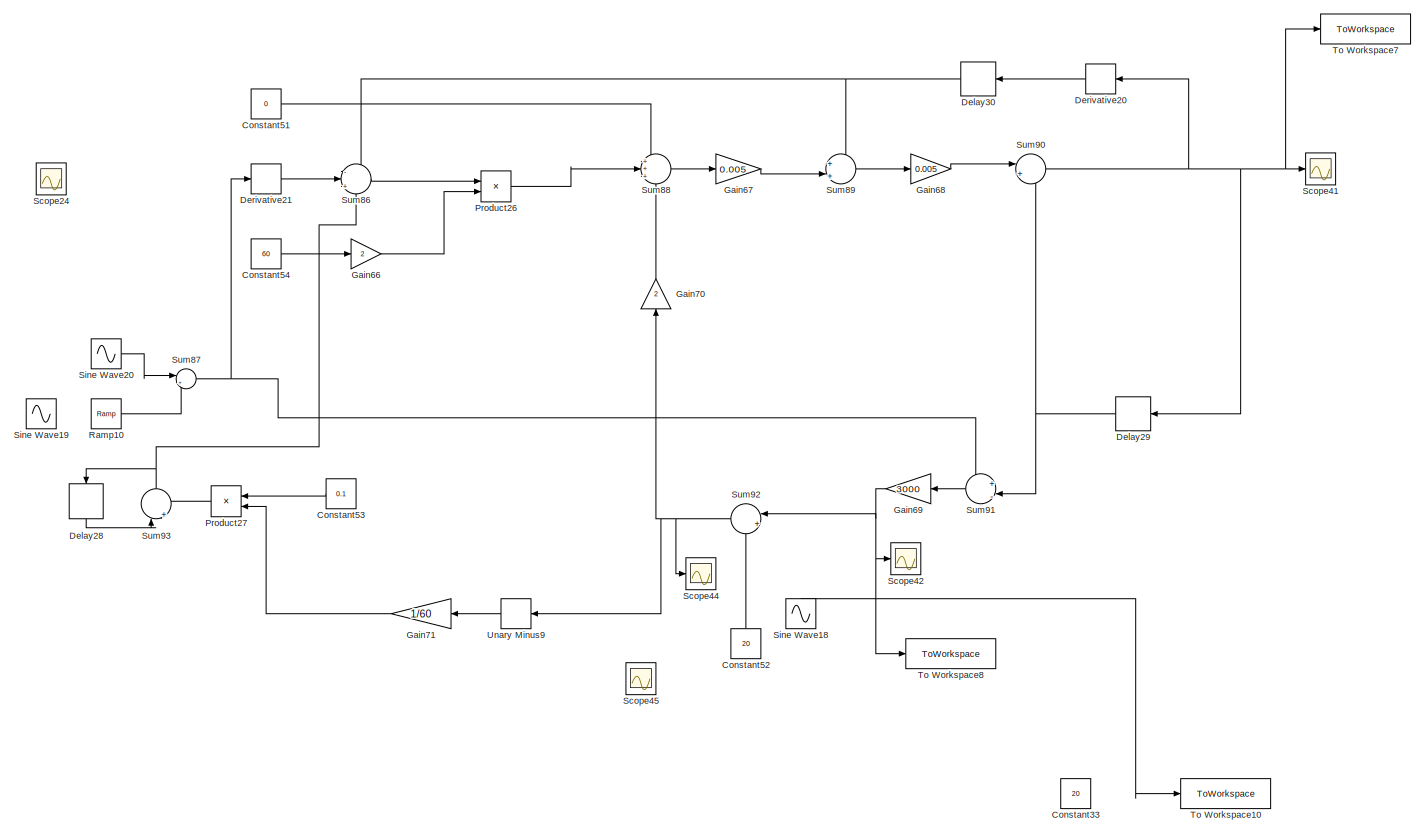
[diagram: root canvas - part 1/13, top left region]
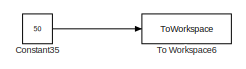
[diagram: root canvas - part 2/13, top left region]
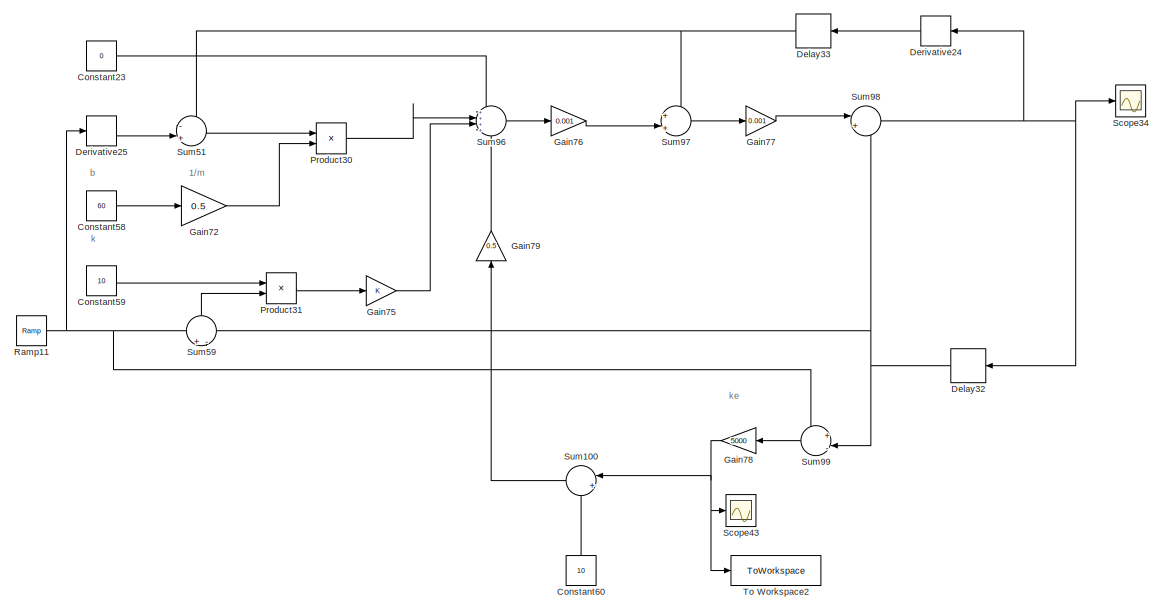
[diagram: root canvas - part 3/13, central region]
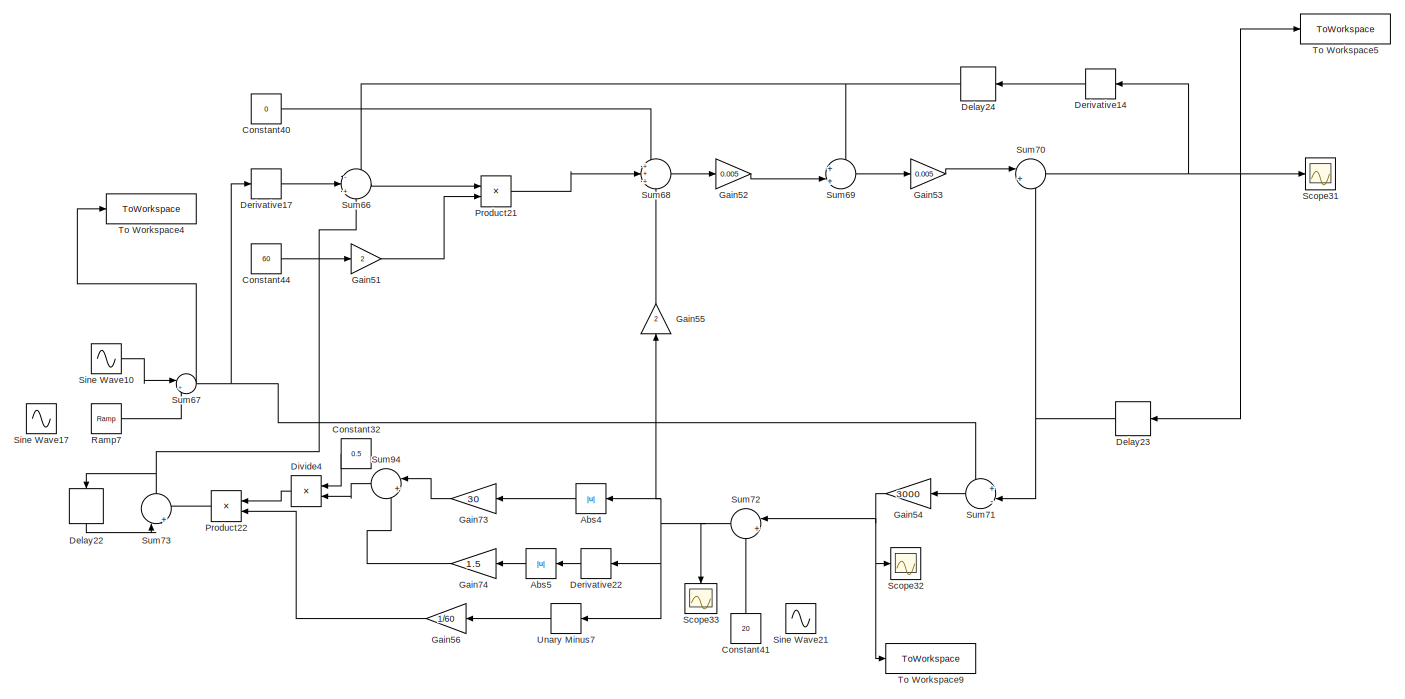
[diagram: root canvas - part 4/13, middle right region]
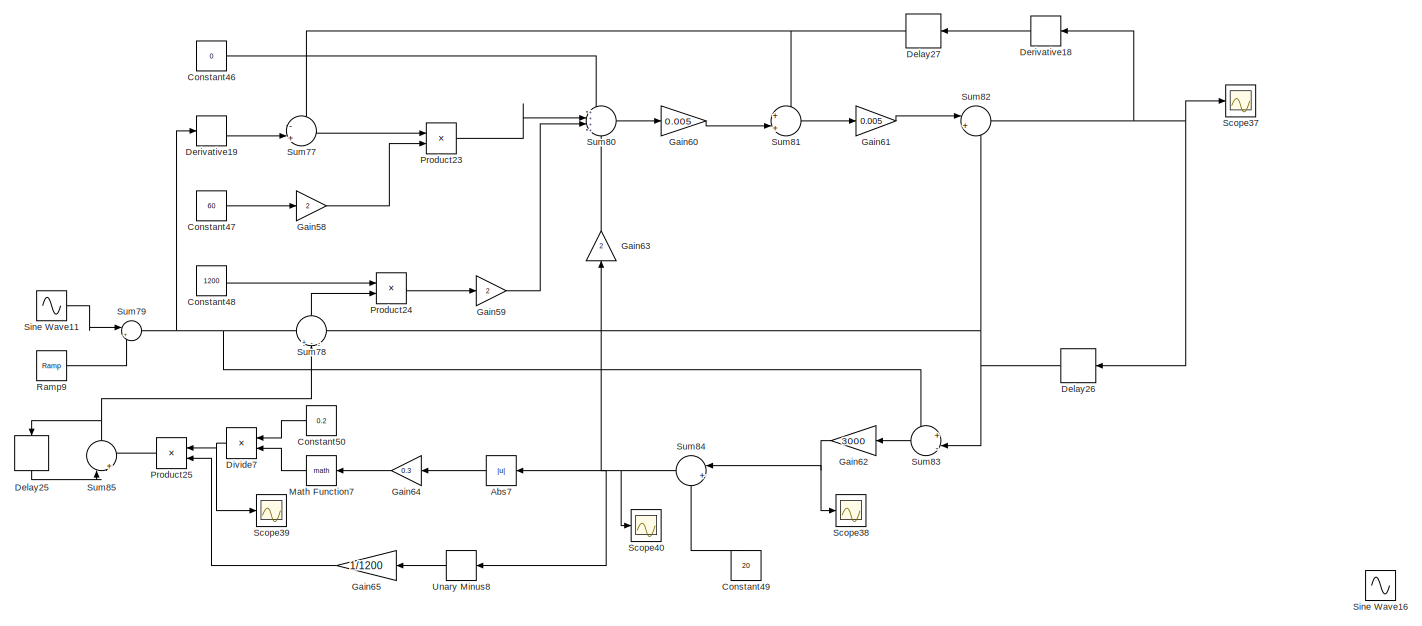
[diagram: root canvas - part 5/13, middle left region]
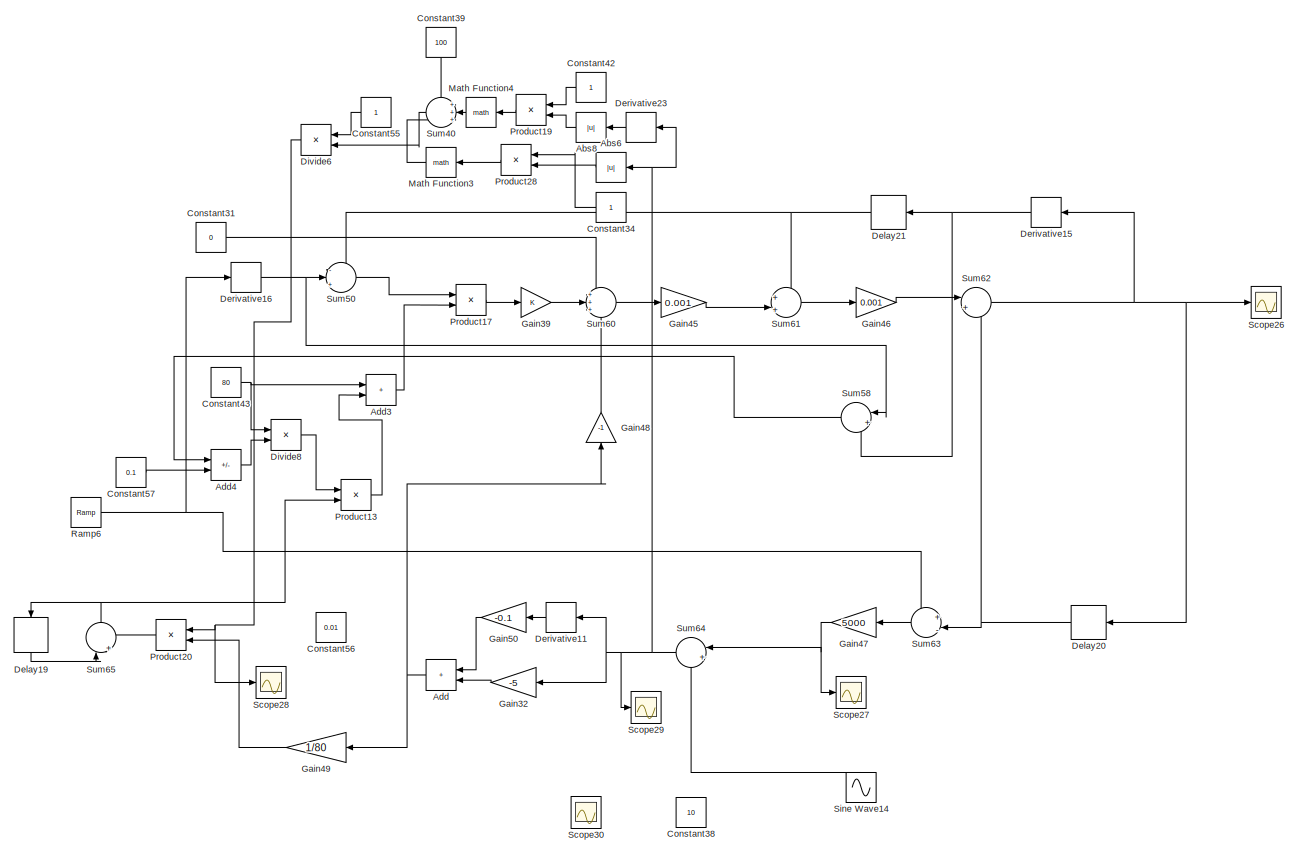
[diagram: root canvas - part 6/13, central region]
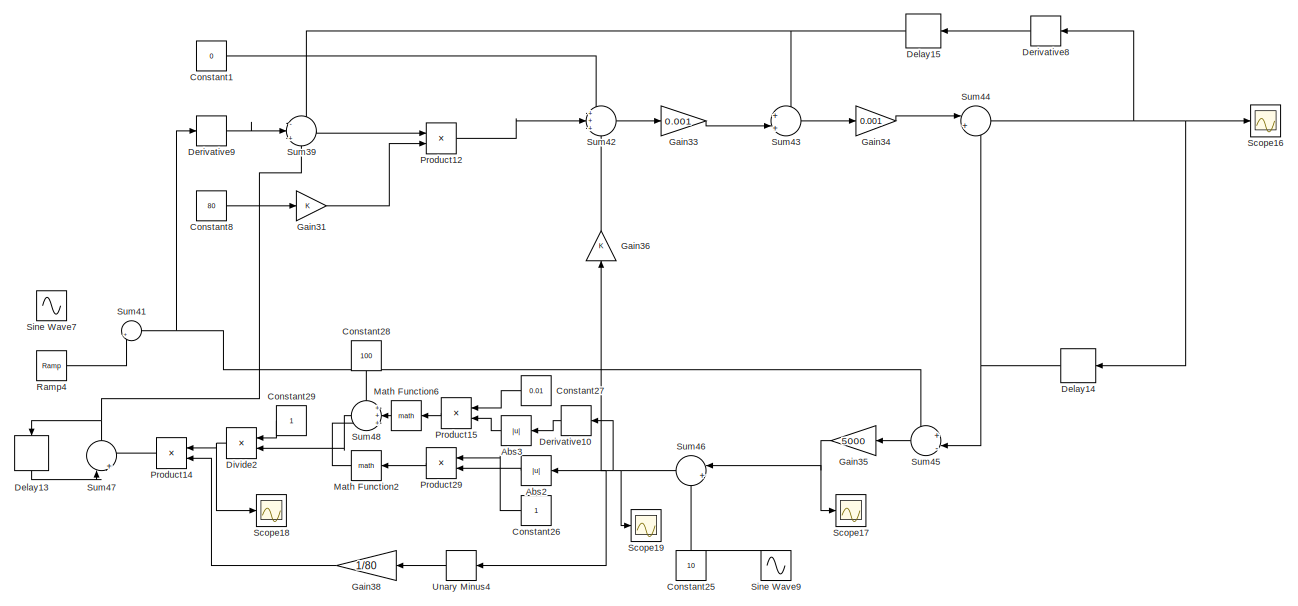
[diagram: root canvas - part 7/13, middle left region]
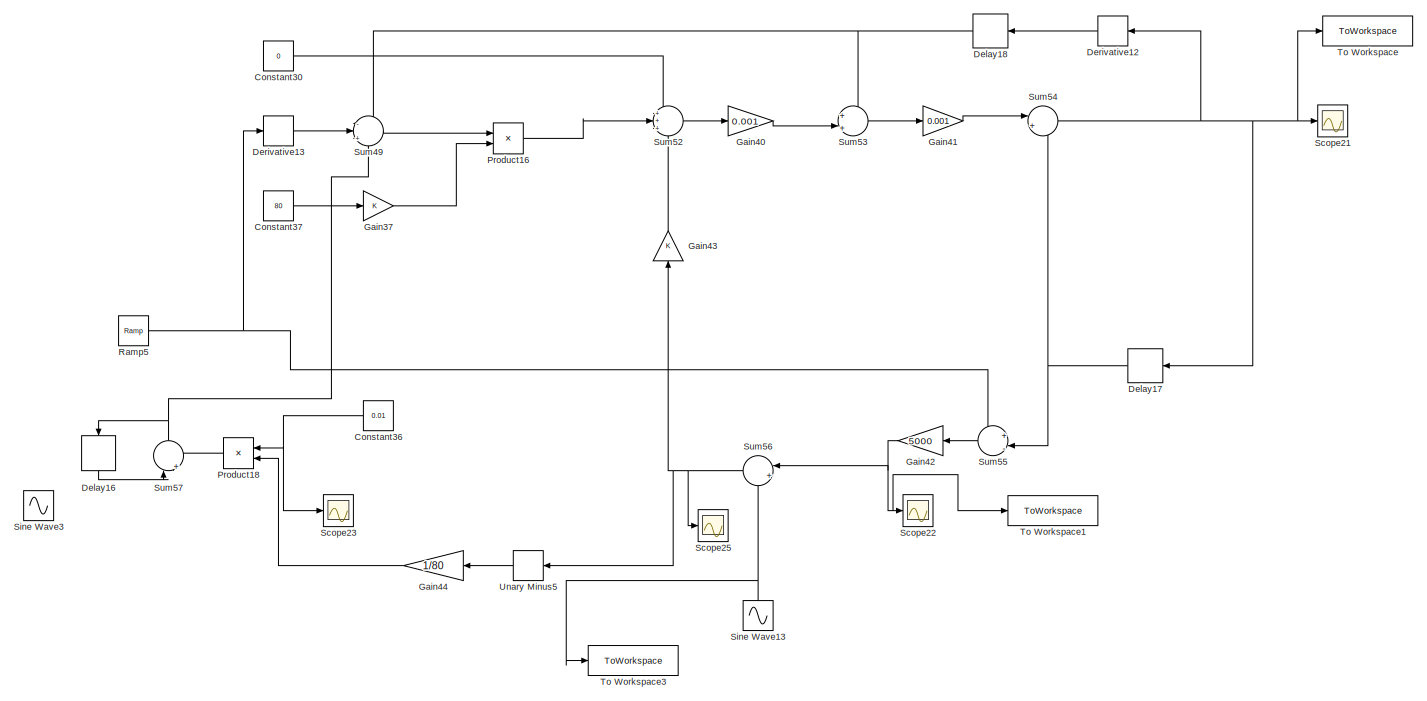
[diagram: root canvas - part 8/13, bottom center region]
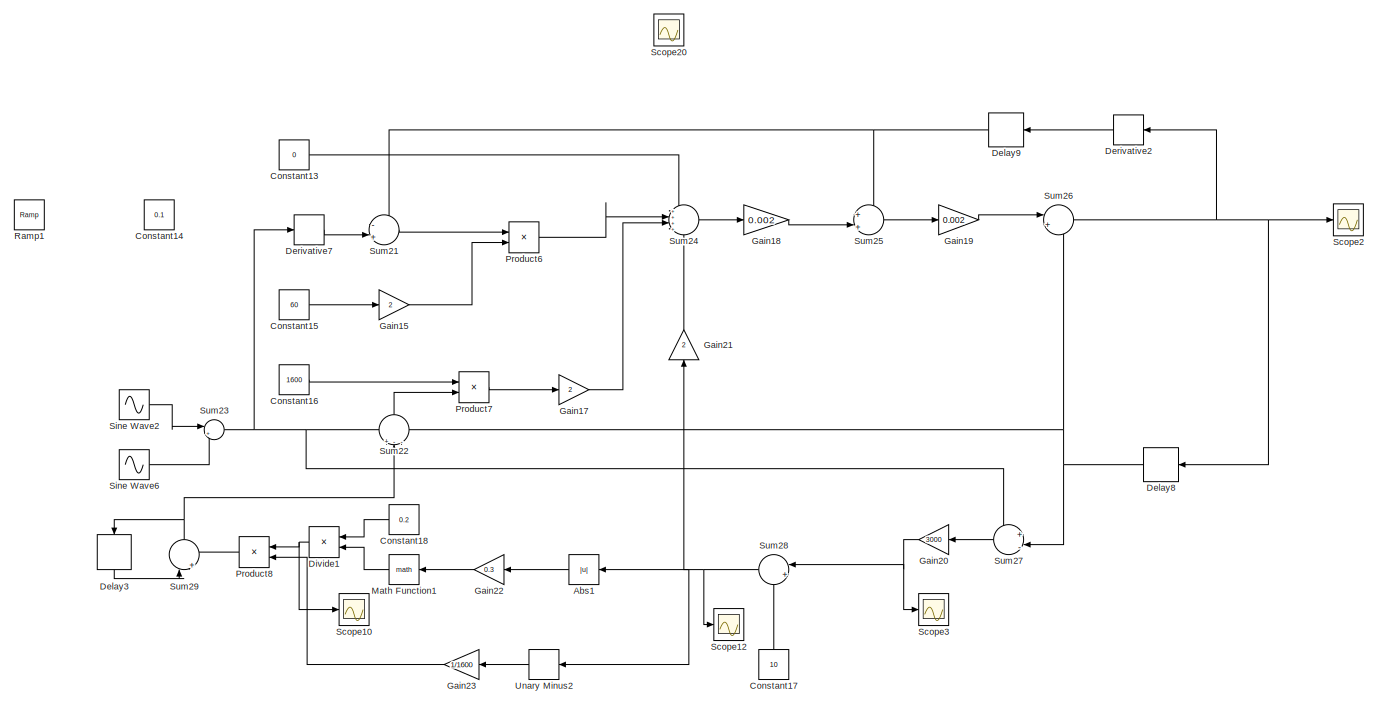
[diagram: root canvas - part 9/13, bottom left region]
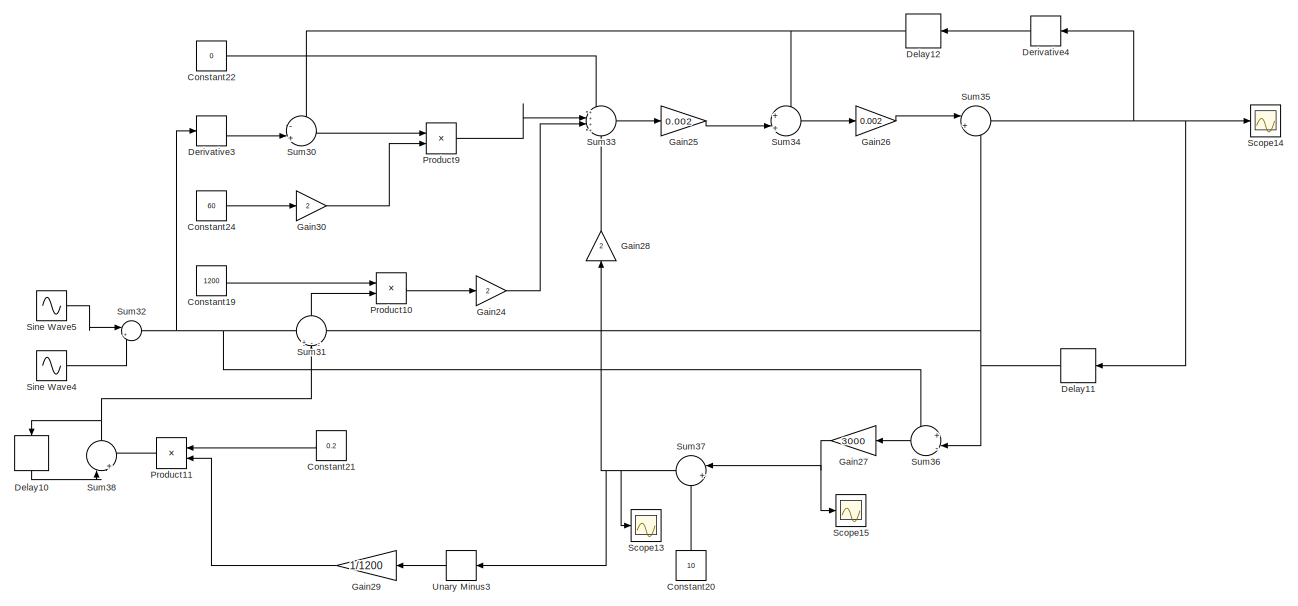
[diagram: root canvas - part 10/13, bottom right region]
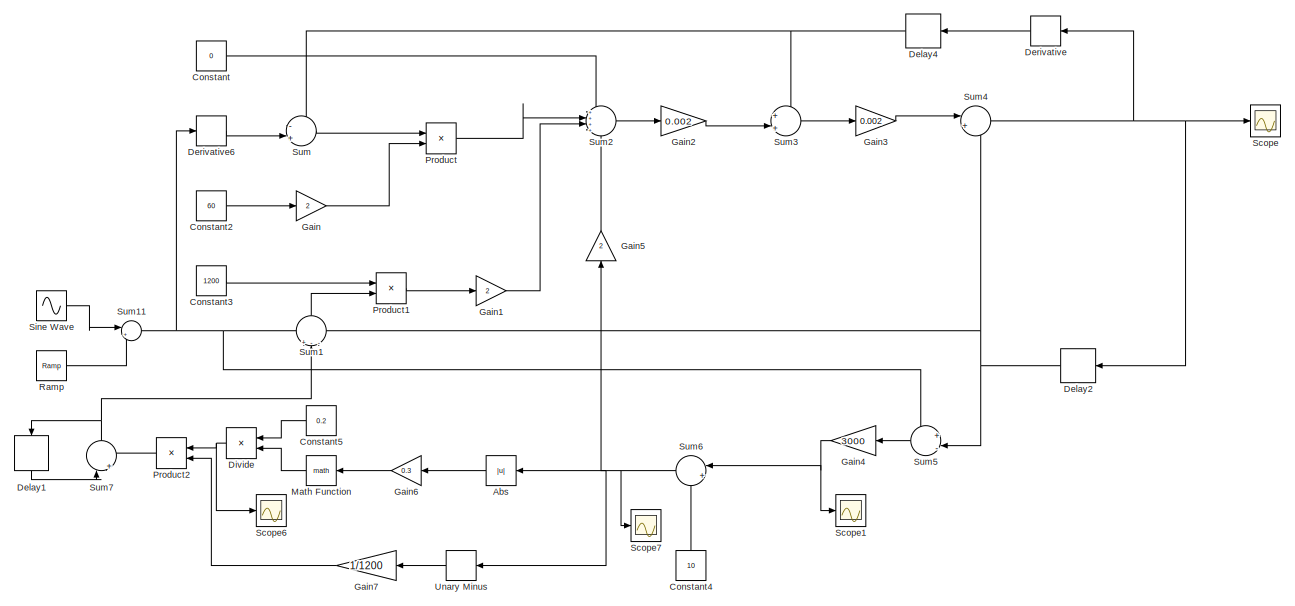
[diagram: root canvas - part 11/13, bottom left region]
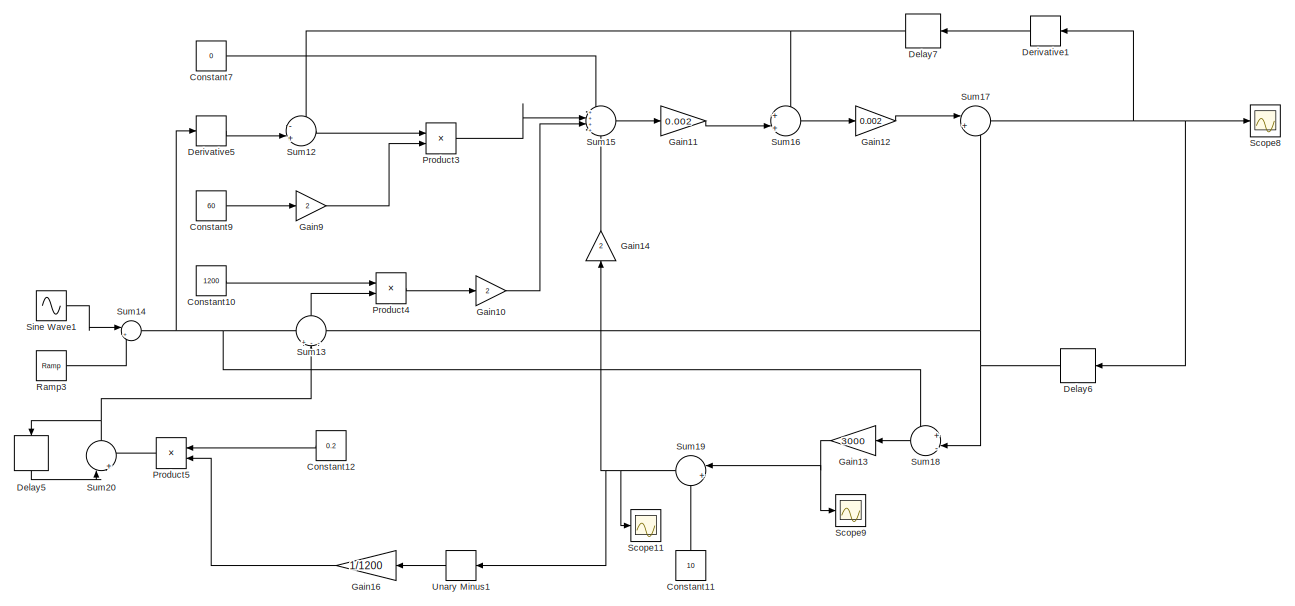
[diagram: root canvas - part 12/13, bottom right region]
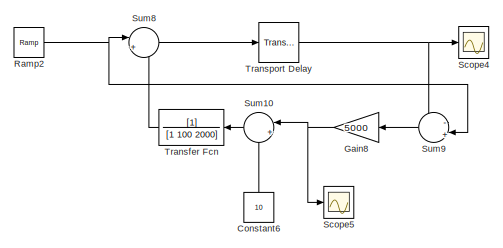
[diagram: root canvas - part 13/13, bottom center region]
MODEL slx_3a280226a64e
KIND model
CONFIG AbsTol = auto
CONFIG EnableMultiTasking = off
CONFIG FixedStep = 0.001
CONFIG MaxStep = auto
CONFIG MinStep = auto
CONFIG RelTol = 1e-3
CONFIG SampleTimeConstraint = Unconstrained
CONFIG SolverName = FixedStepAuto
CONFIG StartTime = 0.0
CONFIG StopTime = 5
BLOCK [Abs] Abs
  Commented = on
  SaturateOnIntegerOverflow = off
BLOCK [Abs] Abs1
  Commented = on
  SaturateOnIntegerOverflow = off
BLOCK [Abs] Abs2
  SaturateOnIntegerOverflow = off
BLOCK [Abs] Abs3
  SaturateOnIntegerOverflow = off
BLOCK [Abs] Abs4
  Commented = on
  SaturateOnIntegerOverflow = off
BLOCK [Abs] Abs5
  Commented = on
  SaturateOnIntegerOverflow = off
BLOCK [Abs] Abs6
  SaturateOnIntegerOverflow = off
BLOCK [Abs] Abs7
  Commented = on
  SaturateOnIntegerOverflow = off
BLOCK [Abs] Abs8
  SaturateOnIntegerOverflow = off
BLOCK [Sum] Add
  IconShape = rectangular
  Ports = [2, 1]
BLOCK [Sum] Add3
  IconShape = rectangular
  Ports = [2, 1]
BLOCK [Sum] Add4
  IconShape = rectangular
  Inputs = -+
  Ports = [2, 1]
BLOCK [Constant] Constant
  Commented = on
  Value = 0
BLOCK [Constant] Constant1
  Value = 0
BLOCK [Constant] Constant10
  Commented = on
  Value = 1200
BLOCK [Constant] Constant11
  Commented = on
  NameLocation = left
  Value = 10
BLOCK [Constant] Constant12
  Commented = on
  SampleTime = 0.002
  Value = 0.2
BLOCK [Constant] Constant13
  Commented = on
  Value = 0
BLOCK [Constant] Constant14
  Commented = on
  Value = 0.1
BLOCK [Constant] Constant15
  Commented = on
  Value = 60
BLOCK [Constant] Constant16
  Commented = on
  Value = 1600
BLOCK [Constant] Constant17
  Commented = on
  NameLocation = left
  Value = 10
BLOCK [Constant] Constant18
  Commented = on
  SampleTime = 0.002
  Value = 0.2
BLOCK [Constant] Constant19
  Commented = on
  Value = 1200
BLOCK [Constant] Constant2
  Commented = on
  Value = 60
BLOCK [Constant] Constant20
  Commented = on
  NameLocation = left
  Value = 10
BLOCK [Constant] Constant21
  Commented = on
  SampleTime = 0.002
  Value = 0.2
BLOCK [Constant] Constant22
  Commented = on
  Value = 0
BLOCK [Constant] Constant23
  Value = 0
BLOCK [Constant] Constant24
  Commented = on
  Value = 60
BLOCK [Constant] Constant25
  NameLocation = left
  Value = 10
BLOCK [Constant] Constant26
BLOCK [Constant] Constant27
  Value = 0.01
BLOCK [Constant] Constant28
  NameLocation = left
  Value = 100
BLOCK [Constant] Constant29
BLOCK [Constant] Constant3
  Commented = on
  Value = 1200
BLOCK [Constant] Constant30
  Value = 0
BLOCK [Constant] Constant31
  Value = 0
BLOCK [Constant] Constant32
  Commented = on
  Value = 0.5
BLOCK [Constant] Constant33
  Commented = on
  SampleTime = 0.005
  Value = 20
BLOCK [Constant] Constant34
BLOCK [Constant] Constant35
  Commented = on
  SampleTime = 0.1
  Value = 50
BLOCK [Constant] Constant36
  Value = 0.01
BLOCK [Constant] Constant37
  Value = 80
BLOCK [Constant] Constant38
  NameLocation = left
  Value = 10
BLOCK [Constant] Constant39
  NameLocation = left
  Value = 100
BLOCK [Constant] Constant4
  Commented = on
  NameLocation = left
  Value = 10
BLOCK [Constant] Constant40
  Commented = on
  Value = 0
BLOCK [Constant] Constant41
  Commented = on
  NameLocation = left
  Value = 20
BLOCK [Constant] Constant42
BLOCK [Constant] Constant43
  Value = 80
BLOCK [Constant] Constant44
  Commented = on
  Value = 60
BLOCK [Constant] Constant46
  Commented = on
  Value = 0
BLOCK [Constant] Constant47
  Commented = on
  Value = 60
BLOCK [Constant] Constant48
  Commented = on
  Value = 1200
BLOCK [Constant] Constant49
  Commented = on
  NameLocation = left
  Value = 20
BLOCK [Constant] Constant5
  Commented = on
  SampleTime = 0.002
  Value = 0.2
BLOCK [Constant] Constant50
  Commented = on
  Value = 0.2
BLOCK [Constant] Constant51
  Commented = on
  Value = 0
BLOCK [Constant] Constant52
  Commented = on
  NameLocation = left
  Value = 20
BLOCK [Constant] Constant53
  Commented = on
  SampleTime = 0.005
  Value = 0.1
BLOCK [Constant] Constant54
  Commented = on
  Value = 60
BLOCK [Constant] Constant55
BLOCK [Constant] Constant56
  Value = 0.01
BLOCK [Constant] Constant57
  Value = 0.1
BLOCK [Constant] Constant58
  Value = 60
BLOCK [Constant] Constant59
  Value = 10
BLOCK [Constant] Constant6
  NameLocation = left
  SampleTime = 0.1
  Value = 10
BLOCK [Constant] Constant60
  NameLocation = left
  Value = 10
BLOCK [Constant] Constant7
  Commented = on
  Value = 0
BLOCK [Constant] Constant8
  Value = 80
BLOCK [Constant] Constant9
  Commented = on
  Value = 60
BLOCK [Delay] Delay1
  Commented = on
  DelayLength = 1
  InitialCondition = 0
  InputPortMap = u0
  NameLocation = right
  Ports = [1, 1]
BLOCK [Delay] Delay10
  Commented = on
  DelayLength = 1
  InitialCondition = 0
  InputPortMap = u0
  NameLocation = right
  Ports = [1, 1]
BLOCK [Delay] Delay11
  Commented = on
  DelayLength = 1
  InitialCondition = 0
  InputPortMap = u0
  NameLocation = top
  Ports = [1, 1]
BLOCK [Delay] Delay12
  Commented = on
  DelayLength = 1
  InitialCondition = 0
  InputPortMap = u0
  NameLocation = top
  Ports = [1, 1]
BLOCK [Delay] Delay13
  DelayLength = 1
  InitialCondition = 0
  InputPortMap = u0
  NameLocation = right
  Ports = [1, 1]
BLOCK [Delay] Delay14
  DelayLength = 1
  InitialCondition = 0
  InputPortMap = u0
  NameLocation = top
  Ports = [1, 1]
BLOCK [Delay] Delay15
  DelayLength = 1
  InitialCondition = 0
  InputPortMap = u0
  NameLocation = top
  Ports = [1, 1]
BLOCK [Delay] Delay16
  DelayLength = 1
  InitialCondition = 0
  InputPortMap = u0
  NameLocation = right
  Ports = [1, 1]
BLOCK [Delay] Delay17
  DelayLength = 1
  InitialCondition = 0
  InputPortMap = u0
  NameLocation = top
  Ports = [1, 1]
BLOCK [Delay] Delay18
  DelayLength = 1
  InitialCondition = 0
  InputPortMap = u0
  NameLocation = top
  Ports = [1, 1]
BLOCK [Delay] Delay19
  DelayLength = 1
  InitialCondition = 0
  InputPortMap = u0
  NameLocation = right
  Ports = [1, 1]
BLOCK [Delay] Delay2
  Commented = on
  DelayLength = 1
  InitialCondition = 0
  InputPortMap = u0
  NameLocation = top
  Ports = [1, 1]
BLOCK [Delay] Delay20
  DelayLength = 1
  InitialCondition = 0
  InputPortMap = u0
  NameLocation = top
  Ports = [1, 1]
BLOCK [Delay] Delay21
  DelayLength = 1
  InitialCondition = 0
  InputPortMap = u0
  NameLocation = top
  Ports = [1, 1]
BLOCK [Delay] Delay22
  Commented = on
  DelayLength = 1
  InitialCondition = 0
  InputPortMap = u0
  NameLocation = right
  Ports = [1, 1]
BLOCK [Delay] Delay23
  Commented = on
  DelayLength = 1
  InitialCondition = 0
  InputPortMap = u0
  NameLocation = top
  Ports = [1, 1]
BLOCK [Delay] Delay24
  Commented = on
  DelayLength = 1
  InitialCondition = 0
  InputPortMap = u0
  NameLocation = top
  Ports = [1, 1]
BLOCK [Delay] Delay25
  Commented = on
  DelayLength = 1
  InitialCondition = 0
  InputPortMap = u0
  NameLocation = right
  Ports = [1, 1]
BLOCK [Delay] Delay26
  Commented = on
  DelayLength = 1
  InitialCondition = 0
  InputPortMap = u0
  NameLocation = top
  Ports = [1, 1]
BLOCK [Delay] Delay27
  Commented = on
  DelayLength = 1
  InitialCondition = 0
  InputPortMap = u0
  NameLocation = top
  Ports = [1, 1]
BLOCK [Delay] Delay28
  Commented = on
  DelayLength = 1
  InitialCondition = 0
  InputPortMap = u0
  NameLocation = right
  Ports = [1, 1]
BLOCK [Delay] Delay29
  Commented = on
  DelayLength = 1
  InitialCondition = 0
  InputPortMap = u0
  NameLocation = top
  Ports = [1, 1]
BLOCK [Delay] Delay3
  Commented = on
  DelayLength = 1
  InitialCondition = 0
  InputPortMap = u0
  NameLocation = right
  Ports = [1, 1]
BLOCK [Delay] Delay30
  Commented = on
  DelayLength = 1
  InitialCondition = 0
  InputPortMap = u0
  NameLocation = top
  Ports = [1, 1]
BLOCK [Delay] Delay32
  DelayLength = 1
  InitialCondition = 0
  InputPortMap = u0
  NameLocation = top
  Ports = [1, 1]
BLOCK [Delay] Delay33
  DelayLength = 1
  InitialCondition = 0
  InputPortMap = u0
  NameLocation = top
  Ports = [1, 1]
BLOCK [Delay] Delay4
  Commented = on
  DelayLength = 1
  InitialCondition = 0
  InputPortMap = u0
  NameLocation = top
  Ports = [1, 1]
BLOCK [Delay] Delay5
  Commented = on
  DelayLength = 1
  InitialCondition = 0
  InputPortMap = u0
  NameLocation = right
  Ports = [1, 1]
BLOCK [Delay] Delay6
  Commented = on
  DelayLength = 1
  InitialCondition = 0
  InputPortMap = u0
  NameLocation = top
  Ports = [1, 1]
BLOCK [Delay] Delay7
  Commented = on
  DelayLength = 1
  InitialCondition = 0
  InputPortMap = u0
  NameLocation = top
  Ports = [1, 1]
BLOCK [Delay] Delay8
  Commented = on
  DelayLength = 1
  InitialCondition = 0
  InputPortMap = u0
  NameLocation = top
  Ports = [1, 1]
BLOCK [Delay] Delay9
  Commented = on
  DelayLength = 1
  InitialCondition = 0
  InputPortMap = u0
  NameLocation = top
  Ports = [1, 1]
BLOCK [Derivative] Derivative
  Commented = on
BLOCK [Derivative] Derivative1
  Commented = on
BLOCK [Derivative] Derivative10
BLOCK [Derivative] Derivative11
BLOCK [Derivative] Derivative12
BLOCK [Derivative] Derivative13
BLOCK [Derivative] Derivative14
  Commented = on
BLOCK [Derivative] Derivative15
BLOCK [Derivative] Derivative16
BLOCK [Derivative] Derivative17
  Commented = on
BLOCK [Derivative] Derivative18
  Commented = on
BLOCK [Derivative] Derivative19
  Commented = on
BLOCK [Derivative] Derivative2
  Commented = on
BLOCK [Derivative] Derivative20
  Commented = on
BLOCK [Derivative] Derivative21
  Commented = on
BLOCK [Derivative] Derivative22
  Commented = on
BLOCK [Derivative] Derivative23
BLOCK [Derivative] Derivative24
BLOCK [Derivative] Derivative25
BLOCK [Derivative] Derivative3
  Commented = on
BLOCK [Derivative] Derivative4
  Commented = on
BLOCK [Derivative] Derivative5
  Commented = on
BLOCK [Derivative] Derivative6
  Commented = on
BLOCK [Derivative] Derivative7
  Commented = on
BLOCK [Derivative] Derivative8
BLOCK [Derivative] Derivative9
BLOCK [Product] Divide
  Commented = on
  Inputs = */
  Ports = [2, 1]
BLOCK [Product] Divide1
  Commented = on
  Inputs = */
  Ports = [2, 1]
BLOCK [Product] Divide2
  Inputs = */
  Ports = [2, 1]
BLOCK [Product] Divide4
  Commented = on
  Inputs = */
  Ports = [2, 1]
BLOCK [Product] Divide6
  Inputs = */
  Ports = [2, 1]
BLOCK [Product] Divide7
  Commented = on
  Inputs = */
  Ports = [2, 1]
BLOCK [Product] Divide8
  Inputs = */
  Ports = [2, 1]
BLOCK [Gain] Gain
  Commented = on
  Gain = 2
BLOCK [Gain] Gain1
  Commented = on
  Gain = 2
BLOCK [Gain] Gain10
  Commented = on
  Gain = 2
BLOCK [Gain] Gain11
  Commented = on
  Gain = 0.002
BLOCK [Gain] Gain12
  Commented = on
  Gain = 0.002
BLOCK [Gain] Gain13
  Commented = on
  Gain = 3000
BLOCK [Gain] Gain14
  Commented = on
  Gain = 2
  NameLocation = left
BLOCK [Gain] Gain15
  Commented = on
  Gain = 2
BLOCK [Gain] Gain16
  Commented = on
  Gain = 1/1200
  RndMeth = Nearest
BLOCK [Gain] Gain17
  Commented = on
  Gain = 2
BLOCK [Gain] Gain18
  Commented = on
  Gain = 0.002
BLOCK [Gain] Gain19
  Commented = on
  Gain = 0.002
BLOCK [Gain] Gain2
  Commented = on
  Gain = 0.002
BLOCK [Gain] Gain20
  Commented = on
  Gain = 3000
BLOCK [Gain] Gain21
  Commented = on
  Gain = 2
  NameLocation = left
BLOCK [Gain] Gain22
  Commented = on
  Gain = 0.3
BLOCK [Gain] Gain23
  Commented = on
  Gain = 1/1600
  RndMeth = Nearest
BLOCK [Gain] Gain24
  Commented = on
  Gain = 2
BLOCK [Gain] Gain25
  Commented = on
  Gain = 0.002
BLOCK [Gain] Gain26
  Commented = on
  Gain = 0.002
BLOCK [Gain] Gain27
  Commented = on
  Gain = 3000
BLOCK [Gain] Gain28
  Commented = on
  Gain = 2
  NameLocation = left
BLOCK [Gain] Gain29
  Commented = on
  Gain = 1/1200
  RndMeth = Nearest
BLOCK [Gain] Gain3
  Commented = on
  Gain = 0.002
BLOCK [Gain] Gain30
  Commented = on
  Gain = 2
BLOCK [Gain] Gain31
BLOCK [Gain] Gain32
  Gain = -5
BLOCK [Gain] Gain33
  Gain = 0.001
BLOCK [Gain] Gain34
  Gain = 0.001
BLOCK [Gain] Gain35
  Gain = 5000
BLOCK [Gain] Gain36
  NameLocation = left
BLOCK [Gain] Gain37
BLOCK [Gain] Gain38
  Gain = 1/80
  RndMeth = Nearest
BLOCK [Gain] Gain39
BLOCK [Gain] Gain4
  Commented = on
  Gain = 3000
BLOCK [Gain] Gain40
  Gain = 0.001
BLOCK [Gain] Gain41
  Gain = 0.001
BLOCK [Gain] Gain42
  Gain = 5000
BLOCK [Gain] Gain43
  NameLocation = left
BLOCK [Gain] Gain44
  Gain = 1/80
  RndMeth = Nearest
BLOCK [Gain] Gain45
  Gain = 0.001
BLOCK [Gain] Gain46
  Gain = 0.001
BLOCK [Gain] Gain47
  Gain = 5000
BLOCK [Gain] Gain48
  Gain = -1
  NameLocation = left
BLOCK [Gain] Gain49
  Gain = 1/80
  RndMeth = Nearest
BLOCK [Gain] Gain5
  Commented = on
  Gain = 2
  NameLocation = left
BLOCK [Gain] Gain50
  Gain = -0.1
BLOCK [Gain] Gain51
  Commented = on
  Gain = 2
BLOCK [Gain] Gain52
  Commented = on
  Gain = 0.005
BLOCK [Gain] Gain53
  Commented = on
  Gain = 0.005
BLOCK [Gain] Gain54
  Commented = on
  Gain = 3000
BLOCK [Gain] Gain55
  Commented = on
  Gain = 2
  NameLocation = left
BLOCK [Gain] Gain56
  Commented = on
  Gain = 1/60
  RndMeth = Nearest
BLOCK [Gain] Gain58
  Commented = on
  Gain = 2
BLOCK [Gain] Gain59
  Commented = on
  Gain = 2
BLOCK [Gain] Gain6
  Commented = on
  Gain = 0.3
BLOCK [Gain] Gain60
  Commented = on
  Gain = 0.005
BLOCK [Gain] Gain61
  Commented = on
  Gain = 0.005
BLOCK [Gain] Gain62
  Commented = on
  Gain = 3000
BLOCK [Gain] Gain63
  Commented = on
  Gain = 2
  NameLocation = left
BLOCK [Gain] Gain64
  Commented = on
  Gain = 0.3
BLOCK [Gain] Gain65
  Commented = on
  Gain = 1/1200
  RndMeth = Nearest
BLOCK [Gain] Gain66
  Commented = on
  Gain = 2
BLOCK [Gain] Gain67
  Commented = on
  Gain = 0.005
BLOCK [Gain] Gain68
  Commented = on
  Gain = 0.005
BLOCK [Gain] Gain69
  Commented = on
  Gain = 3000
BLOCK [Gain] Gain7
  Commented = on
  Gain = 1/1200
  RndMeth = Nearest
BLOCK [Gain] Gain70
  Commented = on
  Gain = 2
  NameLocation = left
BLOCK [Gain] Gain71
  Commented = on
  Gain = 1/60
  RndMeth = Nearest
BLOCK [Gain] Gain72
  Gain = 0.5
BLOCK [Gain] Gain73
  Commented = on
  Gain = 30
BLOCK [Gain] Gain74
  Commented = on
  Gain = 1.5
BLOCK [Gain] Gain75
BLOCK [Gain] Gain76
  Gain = 0.001
BLOCK [Gain] Gain77
  Gain = 0.001
BLOCK [Gain] Gain78
  Gain = 5000
BLOCK [Gain] Gain79
  Gain = 0.5
  NameLocation = left
BLOCK [Gain] Gain8
  Gain = 5000
BLOCK [Gain] Gain9
  Commented = on
  Gain = 2
BLOCK [Math] Math Function
  Commented = on
  Ports = [1, 1]
BLOCK [Math] Math Function1
  Commented = on
  Ports = [1, 1]
BLOCK [Math] Math Function2
  Ports = [1, 1]
BLOCK [Math] Math Function3
  Ports = [1, 1]
BLOCK [Math] Math Function4
  Ports = [1, 1]
BLOCK [Math] Math Function6
  Ports = [1, 1]
BLOCK [Math] Math Function7
  Commented = on
  Ports = [1, 1]
BLOCK [Product] Product
  Commented = on
  Ports = [2, 1]
BLOCK [Product] Product1
  Commented = on
  Ports = [2, 1]
BLOCK [Product] Product10
  Commented = on
  Ports = [2, 1]
BLOCK [Product] Product11
  Commented = on
  Ports = [2, 1]
BLOCK [Product] Product12
  Ports = [2, 1]
BLOCK [Product] Product13
  Ports = [2, 1]
BLOCK [Product] Product14
  Ports = [2, 1]
BLOCK [Product] Product15
  Ports = [2, 1]
BLOCK [Product] Product16
  Ports = [2, 1]
BLOCK [Product] Product17
  Ports = [2, 1]
BLOCK [Product] Product18
  Ports = [2, 1]
BLOCK [Product] Product19
  Ports = [2, 1]
BLOCK [Product] Product2
  Commented = on
  Ports = [2, 1]
BLOCK [Product] Product20
  Ports = [2, 1]
BLOCK [Product] Product21
  Commented = on
  Ports = [2, 1]
BLOCK [Product] Product22
  Commented = on
  Ports = [2, 1]
BLOCK [Product] Product23
  Commented = on
  Ports = [2, 1]
BLOCK [Product] Product24
  Commented = on
  Ports = [2, 1]
BLOCK [Product] Product25
  Commented = on
  Ports = [2, 1]
BLOCK [Product] Product26
  Commented = on
  Ports = [2, 1]
BLOCK [Product] Product27
  Commented = on
  Ports = [2, 1]
BLOCK [Product] Product28
  Ports = [2, 1]
BLOCK [Product] Product29
  Ports = [2, 1]
BLOCK [Product] Product3
  Commented = on
  Ports = [2, 1]
BLOCK [Product] Product30
  Ports = [2, 1]
BLOCK [Product] Product31
  Ports = [2, 1]
BLOCK [Product] Product4
  Commented = on
  Ports = [2, 1]
BLOCK [Product] Product5
  Commented = on
  Ports = [2, 1]
BLOCK [Product] Product6
  Commented = on
  Ports = [2, 1]
BLOCK [Product] Product7
  Commented = on
  Ports = [2, 1]
BLOCK [Product] Product8
  Commented = on
  Ports = [2, 1]
BLOCK [Product] Product9
  Commented = on
  Ports = [2, 1]
BLOCK [Reference] Ramp  REF=simulink/Sources/Ramp
  Commented = on
  Ports = [0, 1]
  SourceBlock = simulink/Sources/Ramp
  SourceProductBaseCode = SL
  SourceType = Ramp
BLOCK [Reference] Ramp1  REF=simulink/Sources/Ramp
  Commented = on
  Ports = [0, 1]
  SourceBlock = simulink/Sources/Ramp
  SourceProductBaseCode = SL
  SourceType = Ramp
BLOCK [Reference] Ramp10  REF=simulink/Sources/Ramp
  Commented = on
  Ports = [0, 1]
  SourceBlock = simulink/Sources/Ramp
  SourceProductBaseCode = SL
  SourceType = Ramp
BLOCK [Reference] Ramp11  REF=simulink/Sources/Ramp
  Ports = [0, 1]
  SourceBlock = simulink/Sources/Ramp
  SourceProductBaseCode = SL
  SourceType = Ramp
BLOCK [Reference] Ramp2  REF=simulink/Sources/Ramp
  Ports = [0, 1]
  SourceBlock = simulink/Sources/Ramp
  SourceProductBaseCode = SL
  SourceType = Ramp
BLOCK [Reference] Ramp3  REF=simulink/Sources/Ramp
  Commented = on
  Ports = [0, 1]
  SourceBlock = simulink/Sources/Ramp
  SourceProductBaseCode = SL
  SourceType = Ramp
BLOCK [Reference] Ramp4  REF=simulink/Sources/Ramp
  Ports = [0, 1]
  SourceBlock = simulink/Sources/Ramp
  SourceProductBaseCode = SL
  SourceType = Ramp
BLOCK [Reference] Ramp5  REF=simulink/Sources/Ramp
  Ports = [0, 1]
  SourceBlock = simulink/Sources/Ramp
  SourceProductBaseCode = SL
  SourceType = Ramp
BLOCK [Reference] Ramp6  REF=simulink/Sources/Ramp
  Ports = [0, 1]
  SourceBlock = simulink/Sources/Ramp
  SourceProductBaseCode = SL
  SourceType = Ramp
BLOCK [Reference] Ramp7  REF=simulink/Sources/Ramp
  Commented = on
  Ports = [0, 1]
  SourceBlock = simulink/Sources/Ramp
  SourceProductBaseCode = SL
  SourceType = Ramp
BLOCK [Reference] Ramp9  REF=simulink/Sources/Ramp
  Commented = on
  Ports = [0, 1]
  SourceBlock = simulink/Sources/Ramp
  SourceProductBaseCode = SL
  SourceType = Ramp
BLOCK [Scope] Scope
  Commented = on
  Floating = off
  NumInputPorts = 1
  Ports = [1]
  ScopeSpecificationString = Simulink.scopes.TimeScopeBlockCfg('CurrentConfiguration', extmgr.ConfigurationSet(extmgr.Configuration('Core','General UI',true),extmgr.Configuration('Core','Source UI',true),extmgr.Configuration('Sources','WiredSimulink',true),extmgr.Configuration('Visuals','Time Domain',true,'SerializedDisplays',{struct('MinYLimReal','-0.02482','MaxYLimReal','0.22148','YLabelReal','','MinYLimMag','0.00000','MaxY...<+1324ch>
BLOCK [Scope] Scope1
  Commented = on
  Floating = off
  NumInputPorts = 1
  Ports = [1]
  ScopeSpecificationString = Simulink.scopes.TimeScopeBlockCfg('CurrentConfiguration', extmgr.ConfigurationSet(extmgr.Configuration('Core','General UI',true),extmgr.Configuration('Core','Source UI',true),extmgr.Configuration('Sources','WiredSimulink',true,'DataLoggingVariableName','ScopeData1'),extmgr.Configuration('Visuals','Time Domain',true,'SerializedDisplays',{struct('MinYLimReal','-1.27171','MaxYLimReal','11.44542','YLa...<+1368ch>
BLOCK [Scope] Scope10
  Commented = on
  Floating = off
  NumInputPorts = 1
  Ports = [1]
  ScopeSpecificationString = Simulink.scopes.TimeScopeBlockCfg('CurrentConfiguration', extmgr.ConfigurationSet(extmgr.Configuration('Core','General UI',true),extmgr.Configuration('Core','Source UI',true),extmgr.Configuration('Sources','WiredSimulink',true,'DataLoggingVariableName','ScopeData2'),extmgr.Configuration('Visuals','Time Domain',true,'SerializedDisplays',{struct('MinYLimReal','-0.0138','MaxYLimReal','0.22376','YLabe...<+1364ch>
BLOCK [Scope] Scope11
  Commented = on
  Floating = off
  NumInputPorts = 1
  Ports = [1]
  ScopeSpecificationString = Simulink.scopes.TimeScopeBlockCfg('CurrentConfiguration', extmgr.ConfigurationSet(extmgr.Configuration('Core','General UI',true),extmgr.Configuration('Core','Source UI',true),extmgr.Configuration('Sources','WiredSimulink',true,'DataLoggingVariableName','ScopeData9'),extmgr.Configuration('Visuals','Time Domain',true,'SerializedDisplays',{struct('MinYLimReal','-11.84188','MaxYLimReal','6.57692','YLa...<+1368ch>
BLOCK [Scope] Scope12
  Commented = on
  Floating = off
  NumInputPorts = 1
  Ports = [1]
  ScopeSpecificationString = Simulink.scopes.TimeScopeBlockCfg('CurrentConfiguration', extmgr.ConfigurationSet(extmgr.Configuration('Core','General UI',true),extmgr.Configuration('Core','Source UI',true),extmgr.Configuration('Sources','WiredSimulink',true,'DataLoggingVariableName','ScopeData3'),extmgr.Configuration('Visuals','Time Domain',true,'SerializedDisplays',{struct('MinYLimReal','-11.27087','MaxYLimReal','1.43783','YLa...<+1396ch>
BLOCK [Scope] Scope13
  Commented = on
  Floating = off
  NumInputPorts = 1
  Ports = [1]
  ScopeSpecificationString = Simulink.scopes.TimeScopeBlockCfg('CurrentConfiguration', extmgr.ConfigurationSet(extmgr.Configuration('Core','General UI',true),extmgr.Configuration('Core','Source UI',true),extmgr.Configuration('Sources','WiredSimulink',true,'DataLoggingVariableName','ScopeData13'),extmgr.Configuration('Visuals','Time Domain',true,'SerializedDisplays',{struct('MinYLimReal','-11.84188','MaxYLimReal','6.57692','YL...<+1369ch>
BLOCK [Scope] Scope14
  Commented = on
  Floating = off
  NumInputPorts = 1
  Ports = [1]
  ScopeSpecificationString = Simulink.scopes.TimeScopeBlockCfg('CurrentConfiguration', extmgr.ConfigurationSet(extmgr.Configuration('Core','General UI',true),extmgr.Configuration('Core','Source UI',true),extmgr.Configuration('Sources','WiredSimulink',true,'DataLoggingVariableName','ScopeData14'),extmgr.Configuration('Visuals','Time Domain',true,'SerializedDisplays',{struct('MinYLimReal','-0.02635','MaxYLimReal','0.22165','YLa...<+1365ch>
BLOCK [Scope] Scope15
  Commented = on
  Floating = off
  NumInputPorts = 1
  Ports = [1]
  ScopeSpecificationString = Simulink.scopes.TimeScopeBlockCfg('CurrentConfiguration', extmgr.ConfigurationSet(extmgr.Configuration('Core','General UI',true),extmgr.Configuration('Core','Source UI',true),extmgr.Configuration('Sources','WiredSimulink',true,'DataLoggingVariableName','ScopeData15'),extmgr.Configuration('Visuals','Time Domain',true,'SerializedDisplays',{struct('MinYLimReal','-1.7244','MaxYLimReal','15.51959','YLa...<+1368ch>
BLOCK [Scope] Scope16
  Floating = off
  NumInputPorts = 1
  Ports = [1]
  ScopeSpecificationString = Simulink.scopes.TimeScopeBlockCfg('CurrentConfiguration', extmgr.ConfigurationSet(extmgr.Configuration('Core','General UI',true),extmgr.Configuration('Core','Source UI',true),extmgr.Configuration('Sources','WiredSimulink',true,'DataLoggingVariableName','ScopeData16'),extmgr.Configuration('Visuals','Time Domain',true,'SerializedDisplays',{struct('MinYLimReal','-0.62506','MaxYLimReal','5.62552','YLa...<+1413ch>
BLOCK [Scope] Scope17
  Floating = off
  NumInputPorts = 1
  Ports = [1]
  ScopeSpecificationString = Simulink.scopes.TimeScopeBlockCfg('CurrentConfiguration', extmgr.ConfigurationSet(extmgr.Configuration('Core','General UI',true),extmgr.Configuration('Core','Source UI',true),extmgr.Configuration('Sources','WiredSimulink',true,'DataLoggingVariableName','ScopeData17'),extmgr.Configuration('Visuals','Time Domain',true,'SerializedDisplays',{struct('MinYLimReal','-9.52025','MaxYLimReal','15.52025','YL...<+1370ch>
BLOCK [Scope] Scope18
  Floating = off
  NumInputPorts = 1
  Ports = [1]
  ScopeSpecificationString = Simulink.scopes.TimeScopeBlockCfg('CurrentConfiguration', extmgr.ConfigurationSet(extmgr.Configuration('Core','General UI',true),extmgr.Configuration('Core','Source UI',true),extmgr.Configuration('Sources','WiredSimulink',true,'DataLoggingVariableName','ScopeData18'),extmgr.Configuration('Visuals','Time Domain',true,'SerializedDisplays',{struct('MinYLimReal','-0.00731','MaxYLimReal','0.06577','YLa...<+1367ch>
BLOCK [Scope] Scope19
  Floating = off
  NumInputPorts = 1
  Ports = [1]
  ScopeSpecificationString = Simulink.scopes.TimeScopeBlockCfg('CurrentConfiguration', extmgr.ConfigurationSet(extmgr.Configuration('Core','General UI',true),extmgr.Configuration('Core','Source UI',true),extmgr.Configuration('Sources','WiredSimulink',true,'DataLoggingVariableName','ScopeData19'),extmgr.Configuration('Visuals','Time Domain',true,'SerializedDisplays',{struct('MinYLimReal','-3.46897','MaxYLimReal','1.22071','YLa...<+1392ch>
BLOCK [Scope] Scope2
  Commented = on
  Floating = off
  NumInputPorts = 1
  Ports = [1]
  ScopeSpecificationString = Simulink.scopes.TimeScopeBlockCfg('CurrentConfiguration', extmgr.ConfigurationSet(extmgr.Configuration('Core','General UI',true),extmgr.Configuration('Core','Source UI',true),extmgr.Configuration('Sources','WiredSimulink',true,'DataLoggingVariableName','ScopeData8'),extmgr.Configuration('Visuals','Time Domain',true,'SerializedDisplays',{struct('MinYLimReal','-0.01683','MaxYLimReal','0.11483','YLab...<+1364ch>
BLOCK [Scope] Scope20
  Floating = off
  NumInputPorts = 1
  Ports = [1]
  ScopeSpecificationString = Simulink.scopes.TimeScopeBlockCfg('CurrentConfiguration', extmgr.ConfigurationSet(extmgr.Configuration('Core','General UI',true),extmgr.Configuration('Core','Source UI',true),extmgr.Configuration('Sources','WiredSimulink',true,'DataLoggingVariableName','ScopeData20'),extmgr.Configuration('Visuals','Time Domain',true,'SerializedDisplays',{struct('MinYLimReal','-1.00000','MaxYLimReal','1.00000','YLa...<+1426ch>
BLOCK [Scope] Scope21
  Floating = off
  NumInputPorts = 1
  Ports = [1]
  ScopeSpecificationString = Simulink.scopes.TimeScopeBlockCfg('CurrentConfiguration', extmgr.ConfigurationSet(extmgr.Configuration('Core','General UI',true),extmgr.Configuration('Core','Source UI',true),extmgr.Configuration('Sources','WiredSimulink',true,'DataLoggingVariableName','ScopeData21'),extmgr.Configuration('Visuals','Time Domain',true,'SerializedDisplays',{struct('MinYLimReal','-0.06321','MaxYLimReal','0.56304','YLa...<+1365ch>
BLOCK [Scope] Scope22
  Floating = off
  NumInputPorts = 1
  Ports = [1]
  ScopeSpecificationString = Simulink.scopes.TimeScopeBlockCfg('CurrentConfiguration', extmgr.ConfigurationSet(extmgr.Configuration('Core','General UI',true),extmgr.Configuration('Core','Source UI',true),extmgr.Configuration('Sources','WiredSimulink',true,'DataLoggingVariableName','ScopeData22'),extmgr.Configuration('Visuals','Time Domain',true,'SerializedDisplays',{struct('MinYLimReal','-9.51986','MaxYLimReal','15.51986','YL...<+1399ch>
BLOCK [Scope] Scope23
  Floating = off
  NumInputPorts = 1
  Ports = [1]
  ScopeSpecificationString = Simulink.scopes.TimeScopeBlockCfg('CurrentConfiguration', extmgr.ConfigurationSet(extmgr.Configuration('Core','General UI',true),extmgr.Configuration('Core','Source UI',true),extmgr.Configuration('Sources','WiredSimulink',true,'DataLoggingVariableName','ScopeData23'),extmgr.Configuration('Visuals','Time Domain',true,'SerializedDisplays',{struct('MinYLimReal','0.009','MaxYLimReal','0.011','YLabelRe...<+1387ch>
BLOCK [Scope] Scope24
  Commented = on
  Floating = off
  NumInputPorts = 1
  Ports = [1]
  ScopeSpecificationString = Simulink.scopes.TimeScopeBlockCfg('CurrentConfiguration', extmgr.ConfigurationSet(extmgr.Configuration('Core','General UI',true),extmgr.Configuration('Core','Source UI',true),extmgr.Configuration('Sources','WiredSimulink',true,'DataLoggingVariableName','ScopeData1'),extmgr.Configuration('Visuals','Time Domain',true,'SerializedDisplays',{struct('MinYLimReal','-1.00000','MaxYLimReal','1.00000','YLab...<+1447ch>
BLOCK [Scope] Scope25
  Floating = off
  NumInputPorts = 1
  Ports = [1]
  ScopeSpecificationString = Simulink.scopes.TimeScopeBlockCfg('CurrentConfiguration', extmgr.ConfigurationSet(extmgr.Configuration('Core','General UI',true),extmgr.Configuration('Core','Source UI',true),extmgr.Configuration('Sources','WiredSimulink',true,'DataLoggingVariableName','ScopeData25'),extmgr.Configuration('Visuals','Time Domain',true,'SerializedDisplays',{struct('MinYLimReal','-3.46241','MaxYLimReal','1.16172','YLa...<+1394ch>
BLOCK [Scope] Scope26
  Floating = off
  NumInputPorts = 1
  Ports = [1]
  ScopeSpecificationString = Simulink.scopes.TimeScopeBlockCfg('CurrentConfiguration', extmgr.ConfigurationSet(extmgr.Configuration('Core','General UI',true),extmgr.Configuration('Core','Source UI',true),extmgr.Configuration('Sources','WiredSimulink',true,'DataLoggingVariableName','ScopeData26'),extmgr.Configuration('Visuals','Time Domain',true,'SerializedDisplays',{struct('MinYLimReal','-0.62508','MaxYLimReal','5.62553','YLa...<+1394ch>
BLOCK [Scope] Scope27
  Floating = off
  NumInputPorts = 1
  Ports = [1]
  ScopeSpecificationString = Simulink.scopes.TimeScopeBlockCfg('CurrentConfiguration', extmgr.ConfigurationSet(extmgr.Configuration('Core','General UI',true),extmgr.Configuration('Core','Source UI',true),extmgr.Configuration('Sources','WiredSimulink',true,'DataLoggingVariableName','ScopeData27'),extmgr.Configuration('Visuals','Time Domain',true,'SerializedDisplays',{struct('MinYLimReal','-9.49974','MaxYLimReal','15.49944','YL...<+1370ch>
BLOCK [Scope] Scope28
  Floating = off
  NumInputPorts = 1
  Ports = [1]
  ScopeSpecificationString = Simulink.scopes.TimeScopeBlockCfg('CurrentConfiguration', extmgr.ConfigurationSet(extmgr.Configuration('Core','General UI',true),extmgr.Configuration('Core','Source UI',true),extmgr.Configuration('Sources','WiredSimulink',true,'DataLoggingVariableName','ScopeData28'),extmgr.Configuration('Visuals','Time Domain',true,'SerializedDisplays',{struct('MinYLimReal','-0.00123','MaxYLimReal','0.01103','YLa...<+1429ch>
BLOCK [Scope] Scope29
  Floating = off
  NumInputPorts = 1
  Ports = [1]
  ScopeSpecificationString = Simulink.scopes.TimeScopeBlockCfg('CurrentConfiguration', extmgr.ConfigurationSet(extmgr.Configuration('Core','General UI',true),extmgr.Configuration('Core','Source UI',true),extmgr.Configuration('Sources','WiredSimulink',true,'DataLoggingVariableName','ScopeData29'),extmgr.Configuration('Visuals','Time Domain',true,'SerializedDisplays',{struct('MinYLimReal','-3.37918','MaxYLimReal','0.41262','YLa...<+1365ch>
BLOCK [Scope] Scope3
  Commented = on
  Floating = off
  NumInputPorts = 1
  Ports = [1]
  ScopeSpecificationString = Simulink.scopes.TimeScopeBlockCfg('CurrentConfiguration', extmgr.ConfigurationSet(extmgr.Configuration('Core','General UI',true),extmgr.Configuration('Core','Source UI',true),extmgr.Configuration('Sources','WiredSimulink',true,'DataLoggingVariableName','ScopeData12'),extmgr.Configuration('Visuals','Time Domain',true,'SerializedDisplays',{struct('MinYLimReal','-1.27087','MaxYLimReal','11.43783','YL...<+1399ch>
BLOCK [Scope] Scope30
  Floating = off
  NumInputPorts = 1
  Ports = [1]
  ScopeSpecificationString = Simulink.scopes.TimeScopeBlockCfg('CurrentConfiguration', extmgr.ConfigurationSet(extmgr.Configuration('Core','General UI',true),extmgr.Configuration('Core','Source UI',true),extmgr.Configuration('Sources','WiredSimulink',true,'DataLoggingVariableName','ScopeData30'),extmgr.Configuration('Visuals','Time Domain',true,'SerializedDisplays',{struct('MinYLimReal','-513.52977','MaxYLimReal','120.29227',...<+1413ch>
BLOCK [Scope] Scope31
  Commented = on
  Floating = off
  NumInputPorts = 1
  Ports = [1]
  ScopeSpecificationString = Simulink.scopes.TimeScopeBlockCfg('CurrentConfiguration', extmgr.ConfigurationSet(extmgr.Configuration('Core','General UI',true),extmgr.Configuration('Core','Source UI',true),extmgr.Configuration('Sources','WiredSimulink',true,'DataLoggingVariableName','ScopeData31'),extmgr.Configuration('Visuals','Time Domain',true,'SerializedDisplays',{struct('MinYLimReal','-0.13792','MaxYLimReal','0.12458','YLa...<+1365ch>
BLOCK [Scope] Scope32
  Commented = on
  Floating = off
  NumInputPorts = 1
  Ports = [1]
  ScopeSpecificationString = Simulink.scopes.TimeScopeBlockCfg('CurrentConfiguration', extmgr.ConfigurationSet(extmgr.Configuration('Core','General UI',true),extmgr.Configuration('Core','Source UI',true),extmgr.Configuration('Sources','WiredSimulink',true,'DataLoggingVariableName','ScopeData32'),extmgr.Configuration('Visuals','Time Domain',true,'SerializedDisplays',{struct('MinYLimReal','-2.50543','MaxYLimReal','22.54889','YL...<+1370ch>
BLOCK [Scope] Scope33
  Commented = on
  Floating = off
  NameLocation = left
  NumInputPorts = 1
  Ports = [1]
  ScopeSpecificationString = Simulink.scopes.TimeScopeBlockCfg('CurrentConfiguration', extmgr.ConfigurationSet(extmgr.Configuration('Core','General UI',true),extmgr.Configuration('Core','Source UI',true),extmgr.Configuration('Sources','WiredSimulink',true,'DataLoggingVariableName','ScopeData1'),extmgr.Configuration('Visuals','Time Domain',true,'SerializedDisplays',{struct('MinYLimReal','-22.50415','MaxYLimReal','2.53735','YLa...<+1397ch>
BLOCK [Scope] Scope34
  Floating = off
  NumInputPorts = 1
  Ports = [1]
  ScopeSpecificationString = Simulink.scopes.TimeScopeBlockCfg('CurrentConfiguration', extmgr.ConfigurationSet(extmgr.Configuration('Core','General UI',true),extmgr.Configuration('Core','Source UI',true),extmgr.Configuration('Sources','WiredSimulink',true,'DataLoggingVariableName','ScopeData1'),extmgr.Configuration('Visuals','Time Domain',true,'SerializedDisplays',{struct('MinYLimReal','-0.06437','MaxYLimReal','0.56141','YLab...<+1364ch>
BLOCK [Scope] Scope37
  Commented = on
  Floating = off
  NumInputPorts = 1
  Ports = [1]
  ScopeSpecificationString = Simulink.scopes.TimeScopeBlockCfg('CurrentConfiguration', extmgr.ConfigurationSet(extmgr.Configuration('Core','General UI',true),extmgr.Configuration('Core','Source UI',true),extmgr.Configuration('Sources','WiredSimulink',true,'DataLoggingVariableName','ScopeData37'),extmgr.Configuration('Visuals','Time Domain',true,'SerializedDisplays',{struct('MinYLimReal','-0.06437','MaxYLimReal','0.56141','YLa...<+1365ch>
BLOCK [Scope] Scope38
  Commented = on
  Floating = off
  NumInputPorts = 1
  Ports = [1]
  ScopeSpecificationString = Simulink.scopes.TimeScopeBlockCfg('CurrentConfiguration', extmgr.ConfigurationSet(extmgr.Configuration('Core','General UI',true),extmgr.Configuration('Core','Source UI',true),extmgr.Configuration('Sources','WiredSimulink',true,'DataLoggingVariableName','ScopeData38'),extmgr.Configuration('Visuals','Time Domain',true,'SerializedDisplays',{struct('MinYLimReal','-6.29411','MaxYLimReal','56.64696','YL...<+1370ch>
BLOCK [Scope] Scope39
  Commented = on
  Floating = off
  NumInputPorts = 1
  Ports = [1]
  ScopeSpecificationString = Simulink.scopes.TimeScopeBlockCfg('CurrentConfiguration', extmgr.ConfigurationSet(extmgr.Configuration('Core','General UI',true),extmgr.Configuration('Core','Source UI',true),extmgr.Configuration('Sources','WiredSimulink',true,'DataLoggingVariableName','ScopeData39'),extmgr.Configuration('Visuals','Time Domain',true,'SerializedDisplays',{struct('MinYLimReal','-0.025','MaxYLimReal','0.225','YLabelR...<+1355ch>
BLOCK [Scope] Scope4
  Floating = off
  NumInputPorts = 1
  Ports = [1]
  ScopeSpecificationString = Simulink.scopes.TimeScopeBlockCfg('CurrentConfiguration', extmgr.ConfigurationSet(extmgr.Configuration('Core','General UI',true),extmgr.Configuration('Core','Source UI',true),extmgr.Configuration('Sources','WiredSimulink',true,'DataLoggingVariableName','ScopeData4'),extmgr.Configuration('Visuals','Time Domain',true,'SerializedDisplays',{struct('MinYLimReal','-0.06383','MaxYLimReal','0.56073','YLab...<+1388ch>
BLOCK [Scope] Scope40
  Commented = on
  Floating = off
  NumInputPorts = 1
  Ports = [1]
  ScopeSpecificationString = Simulink.scopes.TimeScopeBlockCfg('CurrentConfiguration', extmgr.ConfigurationSet(extmgr.Configuration('Core','General UI',true),extmgr.Configuration('Core','Source UI',true),extmgr.Configuration('Sources','WiredSimulink',true,'DataLoggingVariableName','ScopeData40'),extmgr.Configuration('Visuals','Time Domain',true,'SerializedDisplays',{struct('MinYLimReal','-22.50003','MaxYLimReal','2.50027','YL...<+1369ch>
BLOCK [Scope] Scope41
  Commented = on
  Floating = off
  NumInputPorts = 1
  Ports = [1]
  ScopeSpecificationString = Simulink.scopes.TimeScopeBlockCfg('CurrentConfiguration', extmgr.ConfigurationSet(extmgr.Configuration('Core','General UI',true),extmgr.Configuration('Core','Source UI',true),extmgr.Configuration('Sources','WiredSimulink',true,'DataLoggingVariableName','ScopeData41'),extmgr.Configuration('Visuals','Time Domain',true,'SerializedDisplays',{struct('MinYLimReal','-0.13792','MaxYLimReal','0.12459','YLa...<+1365ch>
BLOCK [Scope] Scope42
  Commented = on
  Floating = off
  NumInputPorts = 1
  Ports = [1]
  ScopeSpecificationString = Simulink.scopes.TimeScopeBlockCfg('CurrentConfiguration', extmgr.ConfigurationSet(extmgr.Configuration('Core','General UI',true),extmgr.Configuration('Core','Source UI',true),extmgr.Configuration('Sources','WiredSimulink',true,'DataLoggingVariableName','ScopeData42'),extmgr.Configuration('Visuals','Time Domain',true,'SerializedDisplays',{struct('MinYLimReal','-3.03252','MaxYLimReal','27.29271','YL...<+1370ch>
BLOCK [Scope] Scope43
  Floating = off
  NumInputPorts = 1
  Ports = [1]
  ScopeSpecificationString = Simulink.scopes.TimeScopeBlockCfg('CurrentConfiguration', extmgr.ConfigurationSet(extmgr.Configuration('Core','General UI',true),extmgr.Configuration('Core','Source UI',true),extmgr.Configuration('Sources','WiredSimulink',true,'DataLoggingVariableName','ScopeData2'),extmgr.Configuration('Visuals','Time Domain',true,'SerializedDisplays',{struct('MinYLimReal','-1.76606','MaxYLimReal','15.89451','YLa...<+1396ch>
BLOCK [Scope] Scope44
  Commented = on
  Floating = off
  NumInputPorts = 1
  Ports = [1]
  ScopeSpecificationString = Simulink.scopes.TimeScopeBlockCfg('CurrentConfiguration', extmgr.ConfigurationSet(extmgr.Configuration('Core','General UI',true),extmgr.Configuration('Core','Source UI',true),extmgr.Configuration('Sources','WiredSimulink',true,'DataLoggingVariableName','ScopeData44'),extmgr.Configuration('Visuals','Time Domain',true,'SerializedDisplays',{struct('MinYLimReal','-23.03252','MaxYLimReal','7.29271','YL...<+1418ch>
BLOCK [Scope] Scope45
  Commented = on
  Floating = off
  NumInputPorts = 1
  Ports = [1]
  ScopeSpecificationString = Simulink.scopes.TimeScopeBlockCfg('CurrentConfiguration', extmgr.ConfigurationSet(extmgr.Configuration('Core','General UI',true),extmgr.Configuration('Core','Source UI',true),extmgr.Configuration('Sources','WiredSimulink',true,'DataLoggingVariableName','ScopeData45'),extmgr.Configuration('Visuals','Time Domain',true,'SerializedDisplays',{struct('MinYLimReal','-1.00000','MaxYLimReal','1.00000','YLa...<+1426ch>
BLOCK [Scope] Scope5
  Floating = off
  NumInputPorts = 1
  Ports = [1]
  ScopeSpecificationString = Simulink.scopes.TimeScopeBlockCfg('CurrentConfiguration', extmgr.ConfigurationSet(extmgr.Configuration('Core','General UI',true),extmgr.Configuration('Core','Source UI',true),extmgr.Configuration('Sources','WiredSimulink',true,'DataLoggingVariableName','ScopeData5'),extmgr.Configuration('Visuals','Time Domain',true,'SerializedDisplays',{struct('MinYLimReal','-0.99621','MaxYLimReal','8.9659','YLabe...<+1387ch>
BLOCK [Scope] Scope6
  Commented = on
  Floating = off
  NumInputPorts = 1
  Ports = [1]
  ScopeSpecificationString = Simulink.scopes.TimeScopeBlockCfg('CurrentConfiguration', extmgr.ConfigurationSet(extmgr.Configuration('Core','General UI',true),extmgr.Configuration('Core','Source UI',true),extmgr.Configuration('Sources','WiredSimulink',true,'DataLoggingVariableName','ScopeData6'),extmgr.Configuration('Visuals','Time Domain',true,'SerializedDisplays',{struct('MinYLimReal','-0.0138','MaxYLimReal','0.22376','YLabe...<+1363ch>
BLOCK [Scope] Scope7
  Commented = on
  Floating = off
  NumInputPorts = 1
  Ports = [1]
  ScopeSpecificationString = Simulink.scopes.TimeScopeBlockCfg('CurrentConfiguration', extmgr.ConfigurationSet(extmgr.Configuration('Core','General UI',true),extmgr.Configuration('Core','Source UI',true),extmgr.Configuration('Sources','WiredSimulink',true,'DataLoggingVariableName','ScopeData7'),extmgr.Configuration('Visuals','Time Domain',true,'SerializedDisplays',{struct('MinYLimReal','-11.27171','MaxYLimReal','1.44542','YLa...<+1367ch>
BLOCK [Scope] Scope8
  Commented = on
  Floating = off
  NumInputPorts = 1
  Ports = [1]
  ScopeSpecificationString = Simulink.scopes.TimeScopeBlockCfg('CurrentConfiguration', extmgr.ConfigurationSet(extmgr.Configuration('Core','General UI',true),extmgr.Configuration('Core','Source UI',true),extmgr.Configuration('Sources','WiredSimulink',true,'DataLoggingVariableName','ScopeData10'),extmgr.Configuration('Visuals','Time Domain',true,'SerializedDisplays',{struct('MinYLimReal','-0.02635','MaxYLimReal','0.22165','YLa...<+1365ch>
BLOCK [Scope] Scope9
  Commented = on
  Floating = off
  NumInputPorts = 1
  Ports = [1]
  ScopeSpecificationString = Simulink.scopes.TimeScopeBlockCfg('CurrentConfiguration', extmgr.ConfigurationSet(extmgr.Configuration('Core','General UI',true),extmgr.Configuration('Core','Source UI',true),extmgr.Configuration('Sources','WiredSimulink',true,'DataLoggingVariableName','ScopeData11'),extmgr.Configuration('Visuals','Time Domain',true,'SerializedDisplays',{struct('MinYLimReal','-1.80804','MaxYLimReal','16.27232','YL...<+1370ch>
BLOCK [Sin] Sine Wave
  Amplitude = 0.005
  Commented = on
  Frequency = pi/2
  Ports = [0, 1]
  SampleTime = 0
BLOCK [Sin] Sine Wave1
  Amplitude = 0.005
  Commented = on
  Frequency = pi/2
  Ports = [0, 1]
  SampleTime = 0
BLOCK [Sin] Sine Wave10
  Amplitude = 0.005
  Commented = on
  Frequency = pi/2
  Ports = [0, 1]
  SampleTime = 0
BLOCK [Sin] Sine Wave11
  Amplitude = 0.005
  Commented = on
  Frequency = pi/2
  Ports = [0, 1]
  SampleTime = 0
BLOCK [Sin] Sine Wave13
  Amplitude = 10
  Bias = 3
  NameLocation = right
  Ports = [0, 1]
  SampleTime = 0
BLOCK [Sin] Sine Wave14
  Amplitude = 10
  Bias = 3
  NameLocation = right
  Ports = [0, 1]
  SampleTime = 0
BLOCK [Sin] Sine Wave16
  Amplitude = 0.1
  Frequency = pi/2
  Ports = [0, 1]
  SampleTime = 0
BLOCK [Sin] Sine Wave17
  Amplitude = 0.1
  Commented = on
  Frequency = pi/2
  Ports = [0, 1]
  SampleTime = 0
BLOCK [Sin] Sine Wave18
  Amplitude = 10
  Bias = 10
  Commented = on
  Frequency = pi
  NameLocation = right
  Ports = [0, 1]
  SampleTime = 0
BLOCK [Sin] Sine Wave19
  Amplitude = 0.1
  Commented = on
  Frequency = pi/2
  Ports = [0, 1]
  SampleTime = 0
BLOCK [Sin] Sine Wave2
  Amplitude = 0.005
  Commented = on
  Frequency = pi/2
  Ports = [0, 1]
  SampleTime = 0
BLOCK [Sin] Sine Wave20
  Amplitude = 0.005
  Commented = on
  Frequency = pi/2
  Ports = [0, 1]
  SampleTime = 0
BLOCK [Sin] Sine Wave21
  Amplitude = 10
  Bias = 10
  Commented = on
  Frequency = pi
  NameLocation = right
  Ports = [0, 1]
  SampleTime = 0
BLOCK [Sin] Sine Wave3
  Amplitude = 0.005
  Commented = on
  Frequency = pi/2
  Phase = -pi/2
  Ports = [0, 1]
  SampleTime = 0
BLOCK [Sin] Sine Wave4
  Amplitude = 0.1
  Commented = on
  Frequency = pi/2
  Ports = [0, 1]
  SampleTime = 0
BLOCK [Sin] Sine Wave5
  Amplitude = 0.005
  Commented = on
  Frequency = pi/2
  Ports = [0, 1]
  SampleTime = 0
BLOCK [Sin] Sine Wave6
  Amplitude = 0.1
  Commented = on
  Frequency = pi/2
  Ports = [0, 1]
  SampleTime = 0
BLOCK [Sin] Sine Wave7
  Amplitude = 0.005
  Frequency = pi/2
  Ports = [0, 1]
  SampleTime = 0
BLOCK [Sin] Sine Wave9
  Amplitude = 10
  Bias = 3
  NameLocation = right
  Ports = [0, 1]
  SampleTime = 0
BLOCK [Sum] Sum
  Commented = on
  Inputs = -|+||
  Ports = [2, 1]
BLOCK [Sum] Sum1
  Commented = on
  Inputs = +--
  NameLocation = right
  Ports = [3, 1]
BLOCK [Sum] Sum10
  Inputs = |+-
  Ports = [2, 1]
BLOCK [Sum] Sum100
  Inputs = |+-
  Ports = [2, 1]
BLOCK [Sum] Sum11
  Commented = on
  Inputs = |++
  Ports = [2, 1]
BLOCK [Sum] Sum12
  Commented = on
  Inputs = -|+||
  Ports = [2, 1]
BLOCK [Sum] Sum13
  Commented = on
  Inputs = +--
  NameLocation = right
  Ports = [3, 1]
BLOCK [Sum] Sum14
  Commented = on
  Inputs = |++
  Ports = [2, 1]
BLOCK [Sum] Sum15
  Commented = on
  Inputs = ++++
  Ports = [4, 1]
BLOCK [Sum] Sum16
  Commented = on
  Inputs = +|+||
  Ports = [2, 1]
BLOCK [Sum] Sum17
  Commented = on
  Inputs = |++
  Ports = [2, 1]
BLOCK [Sum] Sum18
  Commented = on
  Inputs = +|-||
  Ports = [2, 1]
BLOCK [Sum] Sum19
  Commented = on
  Inputs = |+-
  Ports = [2, 1]
BLOCK [Sum] Sum2
  Commented = on
  Inputs = ++++
  Ports = [4, 1]
BLOCK [Sum] Sum20
  Commented = on
  Inputs = ||+|+
  NameLocation = left
  Ports = [2, 1]
BLOCK [Sum] Sum21
  Commented = on
  Inputs = -|+||
  Ports = [2, 1]
BLOCK [Sum] Sum22
  Commented = on
  Inputs = +--
  NameLocation = right
  Ports = [3, 1]
BLOCK [Sum] Sum23
  Commented = on
  Inputs = |++
  Ports = [2, 1]
BLOCK [Sum] Sum24
  Commented = on
  Inputs = ++++
  Ports = [4, 1]
BLOCK [Sum] Sum25
  Commented = on
  Inputs = +|+||
  Ports = [2, 1]
BLOCK [Sum] Sum26
  Commented = on
  Inputs = |++
  Ports = [2, 1]
BLOCK [Sum] Sum27
  Commented = on
  Inputs = +|-||
  Ports = [2, 1]
BLOCK [Sum] Sum28
  Commented = on
  Inputs = |+-
  Ports = [2, 1]
BLOCK [Sum] Sum29
  Commented = on
  Inputs = ||+|+
  NameLocation = left
  Ports = [2, 1]
BLOCK [Sum] Sum3
  Commented = on
  Inputs = +|+||
  Ports = [2, 1]
BLOCK [Sum] Sum30
  Commented = on
  Inputs = -|+||
  Ports = [2, 1]
BLOCK [Sum] Sum31
  Commented = on
  Inputs = +--
  NameLocation = right
  Ports = [3, 1]
BLOCK [Sum] Sum32
  Commented = on
  Inputs = |++
  Ports = [2, 1]
BLOCK [Sum] Sum33
  Commented = on
  Inputs = ++++
  Ports = [4, 1]
BLOCK [Sum] Sum34
  Commented = on
  Inputs = +|+||
  Ports = [2, 1]
BLOCK [Sum] Sum35
  Commented = on
  Inputs = |++
  Ports = [2, 1]
BLOCK [Sum] Sum36
  Commented = on
  Inputs = +|-||
  Ports = [2, 1]
BLOCK [Sum] Sum37
  Commented = on
  Inputs = |+-
  Ports = [2, 1]
BLOCK [Sum] Sum38
  Commented = on
  Inputs = ||+|+
  NameLocation = left
  Ports = [2, 1]
BLOCK [Sum] Sum39
  Inputs = -|+||-
  Ports = [3, 1]
BLOCK [Sum] Sum4
  Commented = on
  Inputs = |++
  Ports = [2, 1]
BLOCK [Sum] Sum40
  Inputs = +++
  Ports = [3, 1]
BLOCK [Sum] Sum41
  Inputs = |++
  Ports = [2, 1]
BLOCK [Sum] Sum42
  Inputs = +++
  Ports = [3, 1]
BLOCK [Sum] Sum43
  Inputs = +|+||
  Ports = [2, 1]
BLOCK [Sum] Sum44
  Inputs = |++
  Ports = [2, 1]
BLOCK [Sum] Sum45
  Inputs = +|-||
  Ports = [2, 1]
BLOCK [Sum] Sum46
  Inputs = |+-
  Ports = [2, 1]
BLOCK [Sum] Sum47
  Inputs = ||+|+
  NameLocation = left
  Ports = [2, 1]
BLOCK [Sum] Sum48
  Inputs = +++
  Ports = [3, 1]
BLOCK [Sum] Sum49
  Inputs = -|+|-
  Ports = [3, 1]
BLOCK [Sum] Sum5
  Commented = on
  Inputs = +|-||
  Ports = [2, 1]
BLOCK [Sum] Sum50
  Inputs = -|+|-
  Ports = [3, 1]
BLOCK [Sum] Sum51
  Inputs = -|+||
  Ports = [2, 1]
BLOCK [Sum] Sum52
  Inputs = +++
  Ports = [3, 1]
BLOCK [Sum] Sum53
  Inputs = +|+||
  Ports = [2, 1]
BLOCK [Sum] Sum54
  Inputs = |++
  Ports = [2, 1]
BLOCK [Sum] Sum55
  Inputs = +|-||
  Ports = [2, 1]
BLOCK [Sum] Sum56
  Inputs = |+-
  Ports = [2, 1]
BLOCK [Sum] Sum57
  Inputs = ||+|+
  NameLocation = left
  Ports = [2, 1]
BLOCK [Sum] Sum58
  Inputs = |+-
  Ports = [2, 1]
BLOCK [Sum] Sum59
  Inputs = +-
  NameLocation = right
  Ports = [2, 1]
BLOCK [Sum] Sum6
  Commented = on
  Inputs = |+-
  Ports = [2, 1]
BLOCK [Sum] Sum60
  Inputs = +++
  Ports = [3, 1]
BLOCK [Sum] Sum61
  Inputs = +|+||
  Ports = [2, 1]
BLOCK [Sum] Sum62
  Inputs = |++
  Ports = [2, 1]
BLOCK [Sum] Sum63
  Inputs = +|-||
  Ports = [2, 1]
BLOCK [Sum] Sum64
  Inputs = |+-
  Ports = [2, 1]
BLOCK [Sum] Sum65
  Inputs = ||+|+
  NameLocation = left
  Ports = [2, 1]
BLOCK [Sum] Sum66
  Commented = on
  Inputs = -|+|-
  Ports = [3, 1]
BLOCK [Sum] Sum67
  Commented = on
  Inputs = |++
  Ports = [2, 1]
BLOCK [Sum] Sum68
  Commented = on
  Inputs = +++
  Ports = [3, 1]
BLOCK [Sum] Sum69
  Commented = on
  Inputs = +|+||
  Ports = [2, 1]
BLOCK [Sum] Sum7
  Commented = on
  Inputs = ||+|+
  NameLocation = left
  Ports = [2, 1]
BLOCK [Sum] Sum70
  Commented = on
  Inputs = |++
  Ports = [2, 1]
BLOCK [Sum] Sum71
  Commented = on
  Inputs = +|-||
  Ports = [2, 1]
BLOCK [Sum] Sum72
  Commented = on
  Inputs = |+-
  Ports = [2, 1]
BLOCK [Sum] Sum73
  Commented = on
  Inputs = ||+|+
  NameLocation = left
  Ports = [2, 1]
BLOCK [Sum] Sum77
  Commented = on
  Inputs = -|+||
  Ports = [2, 1]
BLOCK [Sum] Sum78
  Commented = on
  Inputs = +--
  NameLocation = right
  Ports = [3, 1]
BLOCK [Sum] Sum79
  Commented = on
  Inputs = |++
  Ports = [2, 1]
BLOCK [Sum] Sum8
  Inputs = |++
  Ports = [2, 1]
BLOCK [Sum] Sum80
  Commented = on
  Inputs = ++++
  Ports = [4, 1]
BLOCK [Sum] Sum81
  Commented = on
  Inputs = +|+||
  Ports = [2, 1]
BLOCK [Sum] Sum82
  Commented = on
  Inputs = |++
  Ports = [2, 1]
BLOCK [Sum] Sum83
  Commented = on
  Inputs = +|-||
  Ports = [2, 1]
BLOCK [Sum] Sum84
  Commented = on
  Inputs = |+-
  Ports = [2, 1]
BLOCK [Sum] Sum85
  Commented = on
  Inputs = ||+|+
  NameLocation = left
  Ports = [2, 1]
BLOCK [Sum] Sum86
  Commented = on
  Inputs = -|+|-
  Ports = [3, 1]
BLOCK [Sum] Sum87
  Commented = on
  Inputs = |++
  Ports = [2, 1]
BLOCK [Sum] Sum88
  Commented = on
  Inputs = +++
  Ports = [3, 1]
BLOCK [Sum] Sum89
  Commented = on
  Inputs = +|+||
  Ports = [2, 1]
BLOCK [Sum] Sum9
  Inputs = -|+||
  Ports = [2, 1]
BLOCK [Sum] Sum90
  Commented = on
  Inputs = |++
  Ports = [2, 1]
BLOCK [Sum] Sum91
  Commented = on
  Inputs = +|-||
  Ports = [2, 1]
BLOCK [Sum] Sum92
  Commented = on
  Inputs = |+-
  Ports = [2, 1]
BLOCK [Sum] Sum93
  Commented = on
  Inputs = ||+|+
  NameLocation = left
  Ports = [2, 1]
BLOCK [Sum] Sum94
  Commented = on
  Inputs = |++
  Ports = [2, 1]
BLOCK [Sum] Sum96
  Inputs = ++++
  Ports = [4, 1]
BLOCK [Sum] Sum97
  Inputs = +|+||
  Ports = [2, 1]
BLOCK [Sum] Sum98
  Inputs = |++
  Ports = [2, 1]
BLOCK [Sum] Sum99
  Inputs = +|-||
  Ports = [2, 1]
BLOCK [ToWorkspace] To Workspace
  FixptAsFi = on
  MaxDataPoints = inf
  Ports = [1]
  SampleTime = -1
  SaveFormat = Timeseries
  VariableName = xc
BLOCK [ToWorkspace] To Workspace1
  FixptAsFi = on
  MaxDataPoints = inf
  Ports = [1]
  SampleTime = -1
  SaveFormat = Timeseries
  VariableName = fe
BLOCK [ToWorkspace] To Workspace10
  Commented = on
  FixptAsFi = on
  MaxDataPoints = inf
  Ports = [1]
  SampleTime = -1
  SaveFormat = Timeseries
  VariableName = fr
BLOCK [ToWorkspace] To Workspace2
  FixptAsFi = on
  MaxDataPoints = inf
  Ports = [1]
  SampleTime = -1
  SaveFormat = Timeseries
  VariableName = fe
BLOCK [ToWorkspace] To Workspace3
  FixptAsFi = on
  MaxDataPoints = inf
  Ports = [1]
  SampleTime = -1
  SaveFormat = Timeseries
  VariableName = fr1
BLOCK [ToWorkspace] To Workspace4
  Commented = on
  FixptAsFi = on
  MaxDataPoints = inf
  Ports = [1]
  SampleTime = -1
  SaveFormat = Timeseries
  VariableName = xr1
BLOCK [ToWorkspace] To Workspace5
  Commented = on
  FixptAsFi = on
  MaxDataPoints = inf
  Ports = [1]
  SampleTime = -1
  SaveFormat = Timeseries
  VariableName = xo1
BLOCK [ToWorkspace] To Workspace6
  Commented = on
  FixptAsFi = on
  MaxDataPoints = inf
  Ports = [1]
  SampleTime = -1
  SaveFormat = Timeseries
  VariableName = fr
BLOCK [ToWorkspace] To Workspace7
  Commented = on
  FixptAsFi = on
  MaxDataPoints = inf
  Ports = [1]
  SampleTime = -1
  SaveFormat = Timeseries
  VariableName = xo2
BLOCK [ToWorkspace] To Workspace8
  Commented = on
  FixptAsFi = on
  MaxDataPoints = inf
  Ports = [1]
  SampleTime = -1
  SaveFormat = Timeseries
  VariableName = fo2
BLOCK [ToWorkspace] To Workspace9
  Commented = on
  FixptAsFi = on
  MaxDataPoints = inf
  Ports = [1]
  SampleTime = -1
  SaveFormat = Timeseries
  VariableName = fo1
BLOCK [TransferFcn] Transfer Fcn
  Denominator = [1 100 2000]
BLOCK [TransportDelay] Transport Delay
  DelayTime = 0.001
  Ports = [1, 1]
BLOCK [UnaryMinus] Unary Minus
  Commented = on
BLOCK [UnaryMinus] Unary Minus1
  Commented = on
BLOCK [UnaryMinus] Unary Minus2
  Commented = on
BLOCK [UnaryMinus] Unary Minus3
  Commented = on
BLOCK [UnaryMinus] Unary Minus4
BLOCK [UnaryMinus] Unary Minus5
BLOCK [UnaryMinus] Unary Minus7
  Commented = on
BLOCK [UnaryMinus] Unary Minus8
  Commented = on
BLOCK [UnaryMinus] Unary Minus9
  Commented = on
ANNOTATION (root): 1/m
ANNOTATION (root): b
ANNOTATION (root): k
ANNOTATION (root): k e
LINE Abs1:1 -> Gain22:1
LINE Abs2:1 -> Product29:2
LINE Abs3:1 -> Product15:2
LINE Abs4:1 -> Gain73:1
LINE Abs5:1 -> Gain74:1
LINE Abs6:1 -> Product28:2
LINE Abs7:1 -> Gain64:1
LINE Abs8:1 -> Product19:2
LINE Abs:1 -> Gain6:1
LINE Add3:1 -> Product17:2
LINE Add4:1 -> Divide8:2
NET Add:1 -> Gain48:1, Gain49:1
LINE Constant10:1 -> Product4:1
LINE Constant11:1 -> Sum19:2
LINE Constant12:1 -> Product5:1
LINE Constant13:1 -> Sum24:1
LINE Constant15:1 -> Gain15:1
LINE Constant16:1 -> Product7:1
LINE Constant17:1 -> Sum28:2
LINE Constant18:1 -> Divide1:1
LINE Constant19:1 -> Product10:1
LINE Constant1:1 -> Sum42:1
LINE Constant20:1 -> Sum37:2
LINE Constant21:1 -> Product11:1
LINE Constant22:1 -> Sum33:1
LINE Constant23:1 -> Sum96:1
LINE Constant24:1 -> Gain30:1
LINE Constant26:1 -> Product29:1
LINE Constant27:1 -> Product15:1
LINE Constant28:1 -> Sum48:1
LINE Constant29:1 -> Divide2:1
LINE Constant2:1 -> Gain:1
LINE Constant30:1 -> Sum52:1
LINE Constant31:1 -> Sum60:1
LINE Constant32:1 -> Divide4:1
LINE Constant34:1 -> Product28:1
LINE Constant35:1 -> To Workspace6:1
NET Constant36:1 -> Product18:1, Scope23:1
LINE Constant37:1 -> Gain37:1
LINE Constant39:1 -> Sum40:1
LINE Constant3:1 -> Product1:1
LINE Constant40:1 -> Sum68:1
LINE Constant41:1 -> Sum72:2
LINE Constant42:1 -> Product19:1
NET Constant43:1 -> Add3:1, Divide8:1
LINE Constant44:1 -> Gain51:1
LINE Constant46:1 -> Sum80:1
LINE Constant47:1 -> Gain58:1
LINE Constant48:1 -> Product24:1
LINE Constant49:1 -> Sum84:2
LINE Constant4:1 -> Sum6:2
LINE Constant50:1 -> Divide7:1
LINE Constant51:1 -> Sum88:1
LINE Constant52:1 -> Sum92:2
LINE Constant53:1 -> Product27:1
LINE Constant54:1 -> Gain66:1
LINE Constant55:1 -> Divide6:1
LINE Constant57:1 -> Add4:2
LINE Constant58:1 -> Gain72:1
LINE Constant59:1 -> Product31:1
LINE Constant5:1 -> Divide:1
LINE Constant60:1 -> Sum100:2
LINE Constant6:1 -> Sum10:2
LINE Constant7:1 -> Sum15:1
LINE Constant8:1 -> Gain31:1
LINE Constant9:1 -> Gain9:1
LINE Constant:1 -> Sum2:1
LINE Delay10:1 -> Sum38:1
NET Delay11:1 -> Sum31:3, Sum35:2, Sum36:2
NET Delay12:1 -> Sum30:1, Sum34:1
LINE Delay13:1 -> Sum47:1
NET Delay14:1 -> Sum44:2, Sum45:2
NET Delay15:1 -> Sum39:1, Sum43:1
LINE Delay16:1 -> Sum57:1
NET Delay17:1 -> Sum54:2, Sum55:2
NET Delay18:1 -> Sum49:1, Sum53:1
LINE Delay19:1 -> Sum65:1
LINE Delay1:1 -> Sum7:1
NET Delay20:1 -> Sum62:2, Sum63:2
NET Delay21:1 -> Sum50:1, Sum61:1
LINE Delay22:1 -> Sum73:1
NET Delay23:1 -> Sum70:2, Sum71:2
NET Delay24:1 -> Sum66:1, Sum69:1
LINE Delay25:1 -> Sum85:1
NET Delay26:1 -> Sum78:3, Sum82:2, Sum83:2
NET Delay27:1 -> Sum77:1, Sum81:1
LINE Delay28:1 -> Sum93:1
NET Delay29:1 -> Sum90:2, Sum91:2
NET Delay2:1 -> Sum1:3, Sum4:2, Sum5:2
NET Delay30:1 -> Sum86:1, Sum89:1
NET Delay32:1 -> Sum59:2, Sum98:2, Sum99:2
NET Delay33:1 -> Sum51:1, Sum97:1
LINE Delay3:1 -> Sum29:1
NET Delay4:1 -> Sum3:1, Sum:1
LINE Delay5:1 -> Sum20:1
NET Delay6:1 -> Sum13:3, Sum17:2, Sum18:2
NET Delay7:1 -> Sum12:1, Sum16:1
NET Delay8:1 -> Sum22:3, Sum26:2, Sum27:2
NET Delay9:1 -> Sum21:1, Sum25:1
LINE Derivative10:1 -> Abs3:1
LINE Derivative11:1 -> Gain50:1
LINE Derivative12:1 -> Delay18:1
LINE Derivative13:1 -> Sum49:2
LINE Derivative14:1 -> Delay24:1
NET Derivative15:1 -> Delay21:1, Sum58:2
NET Derivative16:1 -> Sum50:2, Sum58:1
LINE Derivative17:1 -> Sum66:2
LINE Derivative18:1 -> Delay27:1
LINE Derivative19:1 -> Sum77:2
LINE Derivative1:1 -> Delay7:1
LINE Derivative20:1 -> Delay30:1
LINE Derivative21:1 -> Sum86:2
LINE Derivative22:1 -> Abs5:1
LINE Derivative23:1 -> Abs8:1
LINE Derivative24:1 -> Delay33:1
LINE Derivative25:1 -> Sum51:2
LINE Derivative2:1 -> Delay9:1
LINE Derivative3:1 -> Sum30:2
LINE Derivative4:1 -> Delay12:1
LINE Derivative5:1 -> Sum12:2
LINE Derivative6:1 -> Sum:2
LINE Derivative7:1 -> Sum21:2
LINE Derivative8:1 -> Delay15:1
LINE Derivative9:1 -> Sum39:2
LINE Derivative:1 -> Delay4:1
NET Divide1:1 -> Product8:1, Scope10:1
NET Divide2:1 -> Product14:1, Scope18:1
LINE Divide4:1 -> Product22:1
NET Divide6:1 -> Product20:1, Scope28:1
NET Divide7:1 -> Product25:1, Scope39:1
LINE Divide8:1 -> Product13:1
NET Divide:1 -> Product2:1, Scope6:1
LINE Gain10:1 -> Sum15:3
LINE Gain11:1 -> Sum16:2
LINE Gain12:1 -> Sum17:1
NET Gain13:1 -> Scope9:1, Sum19:1
LINE Gain14:1 -> Sum15:4
LINE Gain15:1 -> Product6:2
LINE Gain16:1 -> Product5:2
LINE Gain17:1 -> Sum24:3
LINE Gain18:1 -> Sum25:2
LINE Gain19:1 -> Sum26:1
LINE Gain1:1 -> Sum2:3
NET Gain20:1 -> Scope3:1, Sum28:1
LINE Gain21:1 -> Sum24:4
LINE Gain22:1 -> Math Function1:1
LINE Gain23:1 -> Product8:2
LINE Gain24:1 -> Sum33:3
LINE Gain25:1 -> Sum34:2
LINE Gain26:1 -> Sum35:1
NET Gain27:1 -> Scope15:1, Sum37:1
LINE Gain28:1 -> Sum33:4
LINE Gain29:1 -> Product11:2
LINE Gain2:1 -> Sum3:2
LINE Gain30:1 -> Product9:2
LINE Gain31:1 -> Product12:2
LINE Gain32:1 -> Add:2
LINE Gain33:1 -> Sum43:2
LINE Gain34:1 -> Sum44:1
NET Gain35:1 -> Scope17:1, Sum46:1
LINE Gain36:1 -> Sum42:3
LINE Gain37:1 -> Product16:2
LINE Gain38:1 -> Product14:2
LINE Gain39:1 -> Sum60:2
LINE Gain3:1 -> Sum4:1
LINE Gain40:1 -> Sum53:2
LINE Gain41:1 -> Sum54:1
NET Gain42:1 -> Scope22:1, Sum56:1, To Workspace1:1
LINE Gain43:1 -> Sum52:3
LINE Gain44:1 -> Product18:2
LINE Gain45:1 -> Sum61:2
LINE Gain46:1 -> Sum62:1
NET Gain47:1 -> Scope27:1, Sum64:1
LINE Gain48:1 -> Sum60:3
LINE Gain49:1 -> Product20:2
NET Gain4:1 -> Scope1:1, Sum6:1
LINE Gain50:1 -> Add:1
LINE Gain51:1 -> Product21:2
LINE Gain52:1 -> Sum69:2
LINE Gain53:1 -> Sum70:1
NET Gain54:1 -> Scope32:1, Sum72:1, To Workspace9:1
LINE Gain55:1 -> Sum68:3
LINE Gain56:1 -> Product22:2
LINE Gain58:1 -> Product23:2
LINE Gain59:1 -> Sum80:3
LINE Gain5:1 -> Sum2:4
LINE Gain60:1 -> Sum81:2
LINE Gain61:1 -> Sum82:1
NET Gain62:1 -> Scope38:1, Sum84:1
LINE Gain63:1 -> Sum80:4
LINE Gain64:1 -> Math Function7:1
LINE Gain65:1 -> Product25:2
LINE Gain66:1 -> Product26:2
LINE Gain67:1 -> Sum89:2
LINE Gain68:1 -> Sum90:1
NET Gain69:1 -> Scope42:1, Sum92:1, To Workspace8:1
LINE Gain6:1 -> Math Function:1
LINE Gain70:1 -> Sum88:3
LINE Gain71:1 -> Product27:2
LINE Gain72:1 -> Product30:2
LINE Gain73:1 -> Sum94:1
LINE Gain74:1 -> Sum94:2
LINE Gain75:1 -> Sum96:3
LINE Gain76:1 -> Sum97:2
LINE Gain77:1 -> Sum98:1
NET Gain78:1 -> Scope43:1, Sum100:1, To Workspace2:1
LINE Gain79:1 -> Sum96:4
LINE Gain7:1 -> Product2:2
NET Gain8:1 -> Scope5:1, Sum10:1
LINE Gain9:1 -> Product3:2
LINE Gain:1 -> Product:2
LINE Math Function1:1 -> Divide1:2
LINE Math Function2:1 -> Sum48:3
LINE Math Function3:1 -> Sum40:3
LINE Math Function4:1 -> Sum40:2
LINE Math Function6:1 -> Sum48:2
LINE Math Function7:1 -> Divide7:2
LINE Math Function:1 -> Divide:2
LINE Product10:1 -> Gain24:1
LINE Product11:1 -> Sum38:2
LINE Product12:1 -> Sum42:2
LINE Product13:1 -> Add3:2
LINE Product14:1 -> Sum47:2
LINE Product15:1 -> Math Function6:1
LINE Product16:1 -> Sum52:2
LINE Product17:1 -> Gain39:1
LINE Product18:1 -> Sum57:2
LINE Product19:1 -> Math Function4:1
LINE Product1:1 -> Gain1:1
LINE Product20:1 -> Sum65:2
LINE Product21:1 -> Sum68:2
LINE Product22:1 -> Sum73:2
LINE Product23:1 -> Sum80:2
LINE Product24:1 -> Gain59:1
LINE Product25:1 -> Sum85:2
LINE Product26:1 -> Sum88:2
LINE Product27:1 -> Sum93:2
LINE Product28:1 -> Math Function3:1
LINE Product29:1 -> Math Function2:1
LINE Product2:1 -> Sum7:2
LINE Product30:1 -> Sum96:2
LINE Product31:1 -> Gain75:1
LINE Product3:1 -> Sum15:2
LINE Product4:1 -> Gain10:1
LINE Product5:1 -> Sum20:2
LINE Product6:1 -> Sum24:2
LINE Product7:1 -> Gain17:1
LINE Product8:1 -> Sum29:2
LINE Product9:1 -> Sum33:2
LINE Product:1 -> Sum2:2
LINE Ramp10:1 -> Sum87:2
NET Ramp11:1 -> Derivative25:1, Sum59:1, Sum99:1
NET Ramp2:1 -> Sum8:1, Sum9:2
LINE Ramp3:1 -> Sum14:2
LINE Ramp4:1 -> Sum41:2
NET Ramp5:1 -> Derivative13:1, Sum55:1
NET Ramp6:1 -> Derivative16:1, Sum63:1
LINE Ramp7:1 -> Sum67:2
LINE Ramp9:1 -> Sum79:2
LINE Ramp:1 -> Sum11:2
LINE Sine Wave10:1 -> Sum67:1
LINE Sine Wave11:1 -> Sum79:1
NET Sine Wave13:1 -> Sum56:2, To Workspace3:1
LINE Sine Wave14:1 -> Sum64:2
LINE Sine Wave18:1 -> To Workspace10:1
LINE Sine Wave1:1 -> Sum14:1
LINE Sine Wave20:1 -> Sum87:1
LINE Sine Wave2:1 -> Sum23:1
LINE Sine Wave4:1 -> Sum32:2
LINE Sine Wave5:1 -> Sum32:1
LINE Sine Wave6:1 -> Sum23:2
LINE Sine Wave9:1 -> Sum46:2
LINE Sine Wave:1 -> Sum11:1
LINE Sum100:1 -> Gain79:1
LINE Sum10:1 -> Transfer Fcn:1
NET Sum11:1 -> Derivative6:1, Sum1:1, Sum5:1
LINE Sum12:1 -> Product3:1
LINE Sum13:1 -> Product4:2
NET Sum14:1 -> Derivative5:1, Sum13:1, Sum18:1
LINE Sum15:1 -> Gain11:1
LINE Sum16:1 -> Gain12:1
NET Sum17:1 -> Delay6:1, Derivative1:1, Scope8:1
LINE Sum18:1 -> Gain13:1
NET Sum19:1 -> Gain14:1, Scope11:1, Unary Minus1:1
LINE Sum1:1 -> Product1:2
NET Sum20:1 -> Delay5:1, Sum13:2
LINE Sum21:1 -> Product6:1
LINE Sum22:1 -> Product7:2
NET Sum23:1 -> Derivative7:1, Sum22:1, Sum27:1
LINE Sum24:1 -> Gain18:1
LINE Sum25:1 -> Gain19:1
NET Sum26:1 -> Delay8:1, Derivative2:1, Scope2:1
LINE Sum27:1 -> Gain20:1
NET Sum28:1 -> Abs1:1, Gain21:1, Scope12:1, Unary Minus2:1
NET Sum29:1 -> Delay3:1, Sum22:2
LINE Sum2:1 -> Gain2:1
LINE Sum30:1 -> Product9:1
LINE Sum31:1 -> Product10:2
NET Sum32:1 -> Derivative3:1, Sum31:1, Sum36:1
LINE Sum33:1 -> Gain25:1
LINE Sum34:1 -> Gain26:1
NET Sum35:1 -> Delay11:1, Derivative4:1, Scope14:1
LINE Sum36:1 -> Gain27:1
NET Sum37:1 -> Gain28:1, Scope13:1, Unary Minus3:1
NET Sum38:1 -> Delay10:1, Sum31:2
LINE Sum39:1 -> Product12:1
LINE Sum3:1 -> Gain3:1
LINE Sum40:1 -> Divide6:2
NET Sum41:1 -> Derivative9:1, Sum45:1
LINE Sum42:1 -> Gain33:1
LINE Sum43:1 -> Gain34:1
NET Sum44:1 -> Delay14:1, Derivative8:1, Scope16:1
LINE Sum45:1 -> Gain35:1
NET Sum46:1 -> Abs2:1, Derivative10:1, Gain36:1, Scope19:1, Unary Minus4:1
NET Sum47:1 -> Delay13:1, Sum39:3
LINE Sum48:1 -> Divide2:2
LINE Sum49:1 -> Product16:1
NET Sum4:1 -> Delay2:1, Derivative:1, Scope:1
LINE Sum50:1 -> Product17:1
LINE Sum51:1 -> Product30:1
LINE Sum52:1 -> Gain40:1
LINE Sum53:1 -> Gain41:1
NET Sum54:1 -> Delay17:1, Derivative12:1, Scope21:1, To Workspace:1
LINE Sum55:1 -> Gain42:1
NET Sum56:1 -> Gain43:1, Scope25:1, Unary Minus5:1
NET Sum57:1 -> Delay16:1, Sum49:3
LINE Sum58:1 -> Add4:1
LINE Sum59:1 -> Product31:2
LINE Sum5:1 -> Gain4:1
LINE Sum60:1 -> Gain45:1
LINE Sum61:1 -> Gain46:1
NET Sum62:1 -> Delay20:1, Derivative15:1, Scope26:1
LINE Sum63:1 -> Gain47:1
NET Sum64:1 -> Abs6:1, Derivative11:1, Derivative23:1, Gain32:1, Scope29:1
NET Sum65:1 -> Delay19:1, Product13:2
LINE Sum66:1 -> Product21:1
NET Sum67:1 -> Derivative17:1, Sum71:1, To Workspace4:1
LINE Sum68:1 -> Gain52:1
LINE Sum69:1 -> Gain53:1
NET Sum6:1 -> Abs:1, Gain5:1, Scope7:1, Unary Minus:1
NET Sum70:1 -> Delay23:1, Derivative14:1, Scope31:1, To Workspace5:1
LINE Sum71:1 -> Gain54:1
NET Sum72:1 -> Abs4:1, Derivative22:1, Gain55:1, Scope33:1, Unary Minus7:1
NET Sum73:1 -> Delay22:1, Sum66:3
LINE Sum77:1 -> Product23:1
LINE Sum78:1 -> Product24:2
NET Sum79:1 -> Derivative19:1, Sum78:1, Sum83:1
NET Sum7:1 -> Delay1:1, Sum1:2
LINE Sum80:1 -> Gain60:1
LINE Sum81:1 -> Gain61:1
NET Sum82:1 -> Delay26:1, Derivative18:1, Scope37:1
LINE Sum83:1 -> Gain62:1
NET Sum84:1 -> Abs7:1, Gain63:1, Scope40:1, Unary Minus8:1
NET Sum85:1 -> Delay25:1, Sum78:2
LINE Sum86:1 -> Product26:1
NET Sum87:1 -> Derivative21:1, Sum91:1
LINE Sum88:1 -> Gain67:1
LINE Sum89:1 -> Gain68:1
LINE Sum8:1 -> Transport Delay:1
NET Sum90:1 -> Delay29:1, Derivative20:1, Scope41:1, To Workspace7:1
LINE Sum91:1 -> Gain69:1
NET Sum92:1 -> Gain70:1, Scope44:1, Unary Minus9:1
NET Sum93:1 -> Delay28:1, Sum86:3
LINE Sum94:1 -> Divide4:2
LINE Sum96:1 -> Gain76:1
LINE Sum97:1 -> Gain77:1
NET Sum98:1 -> Delay32:1, Derivative24:1, Scope34:1
LINE Sum99:1 -> Gain78:1
LINE Sum9:1 -> Gain8:1
LINE Sum:1 -> Product:1
LINE Transfer Fcn:1 -> Sum8:2
NET Transport Delay:1 -> Scope4:1, Sum9:1
LINE Unary Minus1:1 -> Gain16:1
LINE Unary Minus2:1 -> Gain23:1
LINE Unary Minus3:1 -> Gain29:1
LINE Unary Minus4:1 -> Gain38:1
LINE Unary Minus5:1 -> Gain44:1
LINE Unary Minus7:1 -> Gain56:1
LINE Unary Minus8:1 -> Gain65:1
LINE Unary Minus9:1 -> Gain71:1
LINE Unary Minus:1 -> Gain7:1
note: NET lines group one-source signal fan-out (src -> all destinations, sorted); 1:1 wires keep LINE
